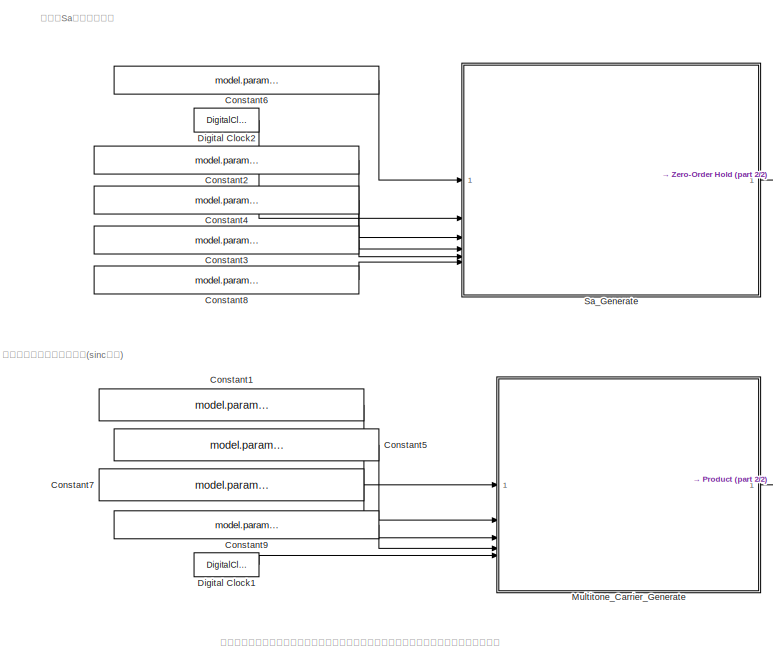
[diagram: root canvas - part 1/2, left side, full height]
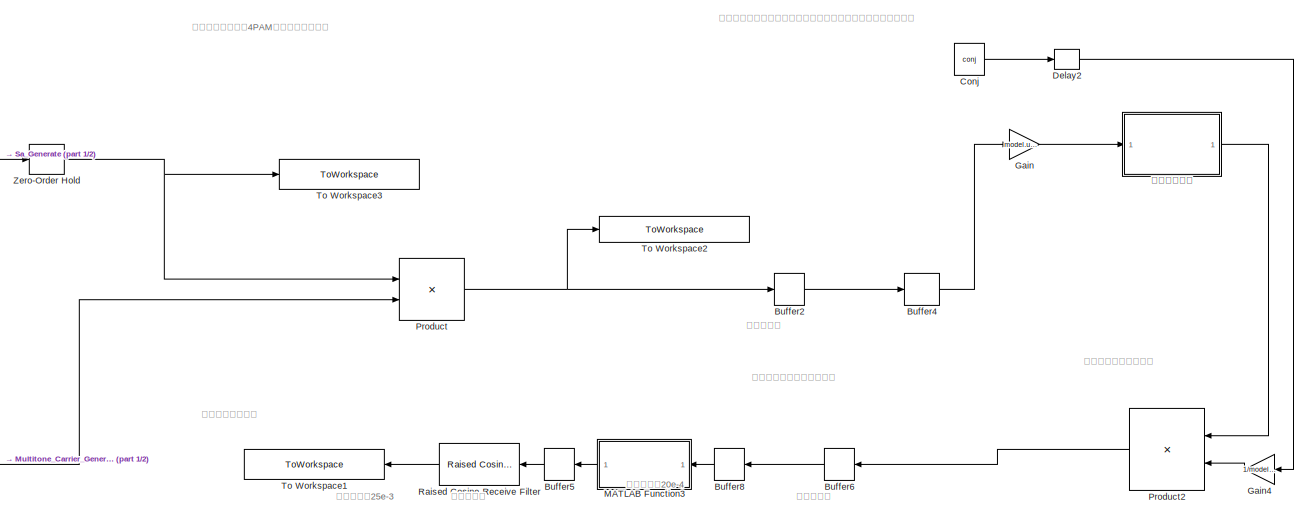
[diagram: root canvas - part 2/2, right side, full height]
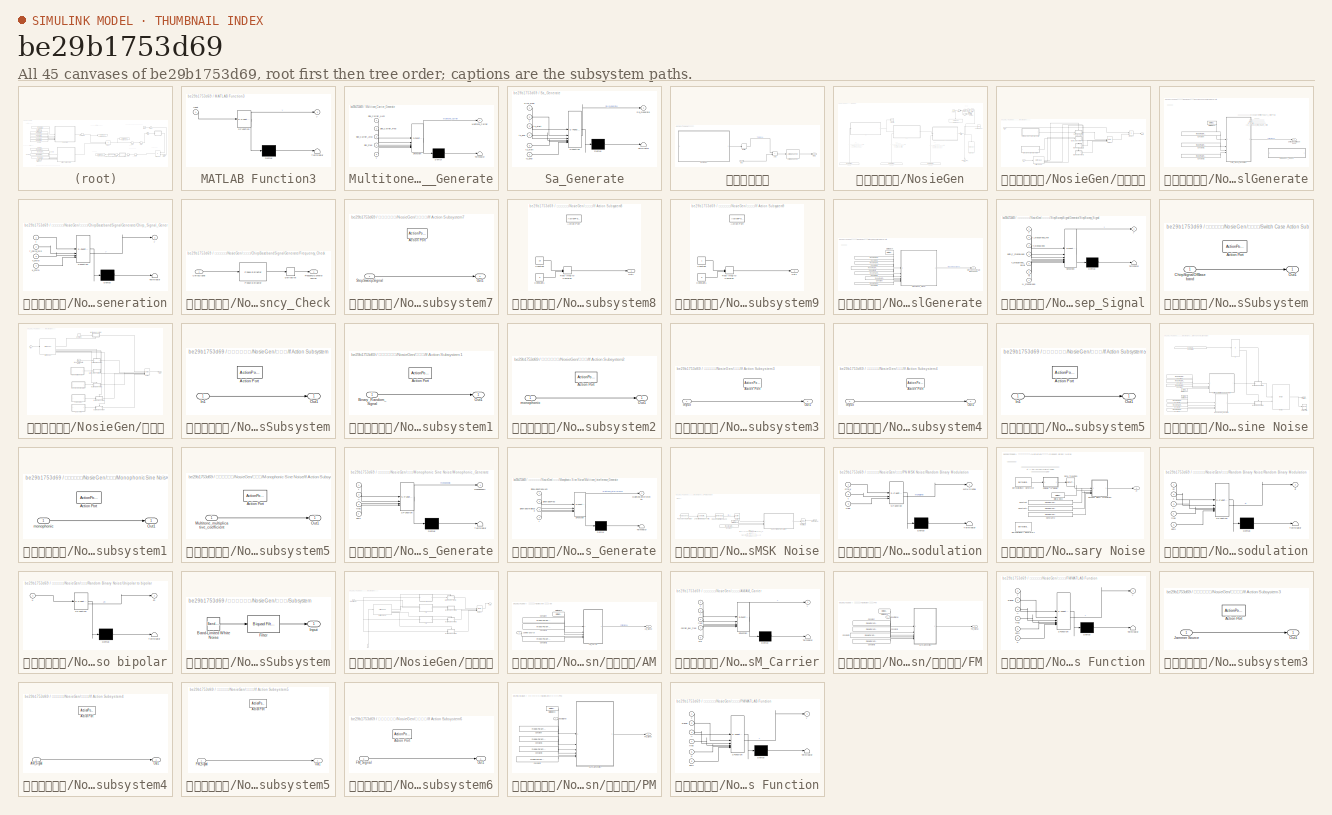
[diagram: thumbnail index - all 45 canvases of the model, root first then tree order]
MODEL slx_be29b1753d69
KIND model
CONFIG AbsTol = auto
CONFIG EnableMultiTasking = off
CONFIG FixedStep = auto
CONFIG InitFcn = Parameter_Initialize_zhentouzhenwei
CONFIG MaxStep = auto
CONFIG MinStep = auto
CONFIG RelTol = 1e-3
CONFIG SampleTimeConstraint = Unconstrained
CONFIG SolverName = VariableStepAuto
CONFIG StartTime = 0.0
CONFIG StopTime = 0.05
BLOCK [Buffer] Buffer2
  N = model.parameter.Buffer2.Output_buffer_size
  OutputFrames = off
BLOCK [Buffer] Buffer4
  N = model.parameter.Buffer4.Output_buffer_size
  OutputFrames = off
BLOCK [Buffer] Buffer5
  N = model.parameter.Buffer5.Output_buffer_size
  NameLocation = top
  OutputFrames = off
BLOCK [Buffer] Buffer6
  N = model.parameter.Buffer6.Output_buffer_size
  NameLocation = top
  OutputFrames = off
BLOCK [Buffer] Buffer8
  N = model.parameter.Buffer8.Output_buffer_size
  NameLocation = top
  OutputFrames = off
BLOCK [Math] Conj
  Operator = conj
BLOCK [Constant] Constant1
  Value = model.parameter.Sine_Carrier_Num
BLOCK [Constant] Constant2
  Value = model.parameter.t1_start
BLOCK [Constant] Constant3
  Value = model.parameter.t2_start
BLOCK [Constant] Constant4
  Value = model.parameter.t1_end
BLOCK [Constant] Constant5
  Value = model.parameter.Sine_Carrier_Freq
BLOCK [Constant] Constant6
  Value = model.parameter.Sinc_Freq
BLOCK [Constant] Constant7
  Value = model.parameter.Sine_Carrier_Ampl
BLOCK [Constant] Constant8
  Value = model.parameter.t2_end
BLOCK [Constant] Constant9
  Value = model.parameter.Sinc_Freq
BLOCK [Delay] Delay2
  DelayLength = model.parameter.delay1.delay_length
  InitialCondition = 0
  InputPortMap = u0
  InputProcessing = Columns as channels (frame based)
BLOCK [DigitalClock] Digital Clock1
  SampleTime = model.parameter.Digital_Clock2.CarrierTs
BLOCK [DigitalClock] Digital Clock2
  SampleTime = model.parameter.Digital_Clock2.CarrierTs
BLOCK [Gain] Gain
  Gain = model.user_defined.TR.Sig_power_controller_coeffience
BLOCK [Gain] Gain4
  Gain = 1/model.user_defined.TR.Sig_power_controller_coeffience
  NameLocation = top
BLOCK [SubSystem] MATLAB Function3
  ErrorFcn = Stateflow.Translate.translate
  LibrarySourceBlock = simulink/User-Defined\nFunctions/MATLAB Function
  NameLocation = top
  PermitHierarchicalResolution = ExplicitOnly
  SFBlockType = MATLAB Function
  TreatAsAtomicUnit = on
BLOCK [Demux] MATLAB Function3/ Demux 
  Outputs = 1
BLOCK [S-Function] MATLAB Function3/ SFunction 
  EnableBusSupport = on
  FunctionName = sf_sfun
  PortCounts = [1 2]
  SFcnIsStateOwnerBlock = off
  SFunctionDeploymentMode = off
  Tag = Stateflow S-Function 6
BLOCK [Terminator] MATLAB Function3/ Terminator 
BLOCK [Inport] MATLAB Function3/input
BLOCK [Outport] MATLAB Function3/y
BLOCK [SubSystem] Multitone_Carrier_Generate
  ErrorFcn = Stateflow.Translate.translate
  LibrarySourceBlock = simulink/User-Defined\nFunctions/MATLAB Function
  PermitHierarchicalResolution = ExplicitOnly
  SFBlockType = MATLAB Function
  TreatAsAtomicUnit = on
BLOCK [Demux] Multitone_Carrier_Generate/ Demux 
  Outputs = 1
BLOCK [S-Function] Multitone_Carrier_Generate/ SFunction 
  EnableBusSupport = on
  FunctionName = sf_sfun
  PortCounts = [5 2]
  SFcnIsStateOwnerBlock = off
  SFunctionDeploymentMode = off
  Tag = Stateflow S-Function 14
BLOCK [Terminator] Multitone_Carrier_Generate/ Terminator 
BLOCK [Outport] Multitone_Carrier_Generate/Multitone_Carrier
BLOCK [Inport] Multitone_Carrier_Generate/Sinc_Freq
  Port = 4
BLOCK [Inport] Multitone_Carrier_Generate/Sine_Carrier_Ampl
  Port = 3
BLOCK [Inport] Multitone_Carrier_Generate/Sine_Carrier_Freq
  Port = 2
BLOCK [Inport] Multitone_Carrier_Generate/Sine_Carrier_Num
BLOCK [Inport] Multitone_Carrier_Generate/t
  Port = 5
BLOCK [Product] Product
BLOCK [Product] Product2
  NameLocation = top
BLOCK [Reference] Raised Cosine Receive Filter  REF=commfilt2/Raised Cosine
Receive Filter
  NameLocation = top
  SourceBlock = commfilt2/Raised Cosine\nReceive Filter
  SourceType = Raised Cosine Receive Filter
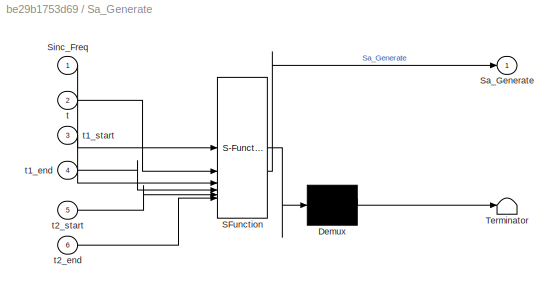
BLOCK [SubSystem] Sa_Generate
  ErrorFcn = Stateflow.Translate.translate
  LibrarySourceBlock = simulink/User-Defined\nFunctions/MATLAB Function
  PermitHierarchicalResolution = ExplicitOnly
  SFBlockType = MATLAB Function
  TreatAsAtomicUnit = on
BLOCK [Demux] Sa_Generate/ Demux 
  Outputs = 1
BLOCK [S-Function] Sa_Generate/ SFunction 
  EnableBusSupport = on
  FunctionName = sf_sfun
  PortCounts = [6 2]
  SFcnIsStateOwnerBlock = off
  SFunctionDeploymentMode = off
  Tag = Stateflow S-Function 1
BLOCK [Terminator] Sa_Generate/ Terminator 
BLOCK [Outport] Sa_Generate/Sa_Generate
BLOCK [Inport] Sa_Generate/Sinc_Freq
BLOCK [Inport] Sa_Generate/t
  Port = 2
BLOCK [Inport] Sa_Generate/t1_end
  Port = 4
BLOCK [Inport] Sa_Generate/t1_start
  Port = 3
BLOCK [Inport] Sa_Generate/t2_end
  Port = 6
BLOCK [Inport] Sa_Generate/t2_start
  Port = 5
BLOCK [ToWorkspace] To Workspace1
  FixptAsFi = on
  MaxDataPoints = inf
  NameLocation = top
  SampleTime = -1
  SaveFormat = Timeseries
  VariableName = receiving_coding
BLOCK [ToWorkspace] To Workspace2
  FixptAsFi = on
  MaxDataPoints = inf
  SampleTime = -1
  SaveFormat = Timeseries
  VariableName = sending_modulation_wave
BLOCK [ToWorkspace] To Workspace3
  FixptAsFi = on
  MaxDataPoints = inf
  SampleTime = -1
  SaveFormat = Timeseries
  VariableName = receiving_coding1
BLOCK [ZeroOrderHold] Zero-Order Hold
  SampleTime = -1
BLOCK [SubSystem] 信道模型封装
BLOCK [Reference] 信道模型封装/AWGN Channel  REF=commchan3/AWGN
Channel
  SourceBlock = commchan3/AWGN\nChannel
  SourceType = AWGN Channel
  UserDataPersistent = on
BLOCK [Sum] 信道模型封装/Add
  IconShape = rectangular
BLOCK [Buffer] 信道模型封装/Buffer
  N = model.parameter.Buffer1.Output_buffer_size
  OutputFrames = off
BLOCK [Inport] 信道模型封装/In1
BLOCK [SubSystem] 信道模型封装/NosieGen
BLOCK [Sum] 信道模型封装/NosieGen/Add1
  Commented = on
  IconShape = rectangular
  NameLocation = top
BLOCK [Buffer] 信道模型封装/NosieGen/Buffer7
  Commented = on
  N = 1
  NameLocation = top
  OutputFrames = off
BLOCK [Constant] 信道模型封装/NosieGen/Constant1
  Commented = on
  NameLocation = top
  SampleTime = model.Parameters.NoiseGen.NoiseTs
  Value = eps
BLOCK [DigitalClock] 信道模型封装/NosieGen/Digital Clock1
  Commented = on
  NameLocation = top
  SampleTime = model.Parameters.NoiseGen.NoiseTs
BLOCK [Product] 信道模型封装/NosieGen/Divide1
  Commented = on
  Inputs = */
  NameLocation = top
BLOCK [Gain] 信道模型封装/NosieGen/Gain
  Gain = model.Parameters.jammer_power_controller
BLOCK [Integrator] 信道模型封装/NosieGen/Integrator1
  Commented = on
  NameLocation = top
BLOCK [Outport] 信道模型封装/NosieGen/Jamming_Signal_Output
  NameLocation = top
BLOCK [Math] 信道模型封装/NosieGen/Power1
  Commented = on
  NameLocation = top
  Operator = magnitude^2
BLOCK [Scope] 信道模型封装/NosieGen/Scope1
  Commented = on
  Floating = off
  NameLocation = top
  NumInputPorts = 1
  ScopeSpecificationString = Simulink.scopes.TimeScopeBlockCfg('CurrentConfiguration', extmgr.ConfigurationSet(extmgr.Configuration('Core','General UI',true),extmgr.Configuration('Core','Source UI',true),extmgr.Configuration('Sources','WiredSimulink',true,'DataLoggingVariableName','ScopeData1'),extmgr.Configuration('Visuals','Time Domain',true,'SerializedDisplays',{struct('MinYLimReal','-13.45061','MaxYLimReal','121.05549','Y...<+1756ch>
BLOCK [SpectrumAnalyzer] 信道模型封装/NosieGen/Spectrum Analyzer
  Commented = on
  NameLocation = right
  ScopeSpecificationString = spbscopes.SpectrumAnalyzerBlockCfg('CurrentConfiguration', extmgr.ConfigurationSet(extmgr.Configuration('Core','General UI',true),extmgr.Configuration('Core','Source UI',true),extmgr.Configuration('Sources','WiredSimulink',true),extmgr.Configuration('Visuals','Spectrum',true,'AxesProperties',struct('Color',{[0 0 0],[0 0 0]},'XColor',{[0.686274509803922 0.686274509803922 0.686274509803922],[0.68627...<+2633ch>
BLOCK [SpectrumAnalyzer] 信道模型封装/NosieGen/Spectrum Analyzer1
  Commented = on
  NameLocation = right
  ScopeSpecificationString = spbscopes.SpectrumAnalyzerBlockCfg('CurrentConfiguration', extmgr.ConfigurationSet(extmgr.Configuration('Core','General UI',true),extmgr.Configuration('Core','Source UI',true),extmgr.Configuration('Sources','WiredSimulink',true),extmgr.Configuration('Visuals','Spectrum',true,'AxesProperties',struct('Color',{[0 0 0],[0 0 0]},'XColor',{[0.686274509803922 0.686274509803922 0.686274509803922],[0.68627...<+2494ch>
BLOCK [ToWorkspace] 信道模型封装/NosieGen/To Workspace
  Commented = on
  FixptAsFi = on
  MaxDataPoints = inf
  NameLocation = left
  SampleTime = -1
  SaveFormat = Timeseries
  VariableName = Noise
BLOCK [ToWorkspace] 信道模型封装/NosieGen/To Workspace1
  Commented = on
  FixptAsFi = on
  MaxDataPoints = inf
  NameLocation = left
  SampleTime = -1
  SaveFormat = Timeseries
  VariableName = NoisePowerEstimation1
BLOCK [SubSystem] 信道模型封装/NosieGen/干扰方式
BLOCK [SubSystem] 信道模型封装/NosieGen/干扰方式/ChirpBasebandSignalGenerate
  AttributesFormatString = 线性调频模块：线性调频公式(y=exp(2*pi*(f_min*t+0.5*k_chirp*t^2)))\n输入参数：\n1. f_min,为线性调频信号的起始频率\n2.f_max为线性调频信号的终止频率\n3.T_chirp为线性调频信号的调频时间\n斜率k_sweep = (f_min-f_max)/T_chirp
BLOCK [Outport] 信道模型封装/NosieGen/干扰方式/ChirpBasebandSignalGenerate/ChirpSignalOfBaseband
BLOCK [SubSystem] 信道模型封装/NosieGen/干扰方式/ChirpBasebandSignalGenerate/Chirp_Signal_Generation
  ErrorFcn = Stateflow.Translate.translate
  LibrarySourceBlock = simulink/User-Defined\nFunctions/MATLAB Function
  PermitHierarchicalResolution = ExplicitOnly
  SFBlockType = MATLAB Function
  TreatAsAtomicUnit = on
BLOCK [Demux] 信道模型封装/NosieGen/干扰方式/ChirpBasebandSignalGenerate/Chirp_Signal_Generation/ Demux 
  Outputs = 1
BLOCK [S-Function] 信道模型封装/NosieGen/干扰方式/ChirpBasebandSignalGenerate/Chirp_Signal_Generation/ SFunction 
  EnableBusSupport = on
  FunctionName = sf_sfun
  PortCounts = [4 2]
  SFcnIsStateOwnerBlock = off
  SFunctionDeploymentMode = off
  Tag = Stateflow S-Function 2
BLOCK [Terminator] 信道模型封装/NosieGen/干扰方式/ChirpBasebandSignalGenerate/Chirp_Signal_Generation/ Terminator 
BLOCK [Inport] 信道模型封装/NosieGen/干扰方式/ChirpBasebandSignalGenerate/Chirp_Signal_Generation/T_chirp
  Port = 3
BLOCK [Inport] 信道模型封装/NosieGen/干扰方式/ChirpBasebandSignalGenerate/Chirp_Signal_Generation/f_chirp_min
  Port = 2
BLOCK [Inport] 信道模型封装/NosieGen/干扰方式/ChirpBasebandSignalGenerate/Chirp_Signal_Generation/k_chirp
  Port = 4
BLOCK [Inport] 信道模型封装/NosieGen/干扰方式/ChirpBasebandSignalGenerate/Chirp_Signal_Generation/t
BLOCK [Outport] 信道模型封装/NosieGen/干扰方式/ChirpBasebandSignalGenerate/Chirp_Signal_Generation/y
BLOCK [Constant] 信道模型封装/NosieGen/干扰方式/ChirpBasebandSignalGenerate/Constant
  Value = model.Parameters.NoiseGen.Jamming.LinearSweepFmin
BLOCK [Constant] 信道模型封装/NosieGen/干扰方式/ChirpBasebandSignalGenerate/Constant1
  Value = model.Parameters.NoiseGen.Jamming.LinearSweepT
BLOCK [Constant] 信道模型封装/NosieGen/干扰方式/ChirpBasebandSignalGenerate/Constant2
  Value = model.Parameters.NoiseGen.Jamming.LinearSweepK
BLOCK [DigitalClock] 信道模型封装/NosieGen/干扰方式/ChirpBasebandSignalGenerate/Digital Clock
  SampleTime = model.Parameters.NoiseGen.NoiseTs
BLOCK [SubSystem] 信道模型封装/NosieGen/干扰方式/ChirpBasebandSignalGenerate/Frequency_Check
  Commented = on
BLOCK [Inport] 信道模型封装/NosieGen/干扰方式/ChirpBasebandSignalGenerate/Frequency_Check/ChirpSignal
BLOCK [Derivative] 信道模型封装/NosieGen/干扰方式/ChirpBasebandSignalGenerate/Frequency_Check/Derivative
BLOCK [Outport] 信道模型封装/NosieGen/干扰方式/ChirpBasebandSignalGenerate/Frequency_Check/FrequencyConversionLine
BLOCK [Reference] 信道模型封装/NosieGen/干扰方式/ChirpBasebandSignalGenerate/Frequency_Check/Phase Extractor  REF=dspsigops/Phase Extractor
  SourceBlock = dspsigops/Phase Extractor
  SourceType = dsp.simulink.PhaseExtractor
BLOCK [SubSystem] 信道模型封装/NosieGen/干扰方式/If Action Subsystem7
  TreatAsAtomicUnit = on
BLOCK [ActionPort] 信道模型封装/NosieGen/干扰方式/If Action Subsystem7/Action Port
  ActionPortLabel = case [ 2 ]:
BLOCK [Outport] 信道模型封装/NosieGen/干扰方式/If Action Subsystem7/Out1
BLOCK [Inport] 信道模型封装/NosieGen/干扰方式/If Action Subsystem7/StepSweepSignal
BLOCK [SubSystem] 信道模型封装/NosieGen/干扰方式/If Action Subsystem8
  TreatAsAtomicUnit = on
BLOCK [ActionPort] 信道模型封装/NosieGen/干扰方式/If Action Subsystem8/Action Port
  ActionPortLabel = case [ 3 ]:
BLOCK [Constant] 信道模型封装/NosieGen/干扰方式/If Action Subsystem8/Constant
  Value = 10
BLOCK [Constant] 信道模型封装/NosieGen/干扰方式/If Action Subsystem8/Constant1
  Value = 0
BLOCK [Outport] 信道模型封装/NosieGen/干扰方式/If Action Subsystem8/Out1
BLOCK [RealImagToComplex] 信道模型封装/NosieGen/干扰方式/If Action Subsystem8/Real-Imag to Complex
BLOCK [SubSystem] 信道模型封装/NosieGen/干扰方式/If Action Subsystem9
  TreatAsAtomicUnit = on
BLOCK [ActionPort] 信道模型封装/NosieGen/干扰方式/If Action Subsystem9/Action Port
  ActionPortLabel = default:
BLOCK [Constant] 信道模型封装/NosieGen/干扰方式/If Action Subsystem9/Constant
BLOCK [Constant] 信道模型封装/NosieGen/干扰方式/If Action Subsystem9/Constant1
  Value = 0
BLOCK [Outport] 信道模型封装/NosieGen/干扰方式/If Action Subsystem9/Out1
BLOCK [RealImagToComplex] 信道模型封装/NosieGen/干扰方式/If Action Subsystem9/Real-Imag to Complex
BLOCK [Inport] 信道模型封装/NosieGen/干扰方式/In1
BLOCK [Inport] 信道模型封装/NosieGen/干扰方式/In2
  Port = 2
BLOCK [Merge] 信道模型封装/NosieGen/干扰方式/Merge2
  Inputs = 4
BLOCK [Outport] 信道模型封装/NosieGen/干扰方式/Out1
BLOCK [Product] 信道模型封装/NosieGen/干扰方式/Product
BLOCK [SubSystem] 信道模型封装/NosieGen/干扰方式/StepSweepSignalGenerate
BLOCK [Constant] 信道模型封装/NosieGen/干扰方式/StepSweepSignalGenerate/Constant
  Value = model.Parameters.NoiseGen.NoiseTs
BLOCK [Constant] 信道模型封装/NosieGen/干扰方式/StepSweepSignalGenerate/Constant1
  Value = model.Parameters.NoiseGen.Jamming.StepSweepFmin
BLOCK [Constant] 信道模型封装/NosieGen/干扰方式/StepSweepSignalGenerate/Constant2
  Value = model.Parameters.NoiseGen.Jamming.StepSweepT
BLOCK [Constant] 信道模型封装/NosieGen/干扰方式/StepSweepSignalGenerate/Constant3
  Value = model.Parameters.NoiseGen.Jamming.StepSweepDeltaFstep
BLOCK [Constant] 信道模型封装/NosieGen/干扰方式/StepSweepSignalGenerate/Constant4
  Value = model.Parameters.NoiseGen.Jamming.StepSweepTDwell
BLOCK [Constant] 信道模型封装/NosieGen/干扰方式/StepSweepSignalGenerate/Constant5
  Value = model.Parameters.NoiseGen.Jamming.StepSweepN
BLOCK [DigitalClock] 信道模型封装/NosieGen/干扰方式/StepSweepSignalGenerate/Digital Clock
  SampleTime = model.Parameters.NoiseGen.NoiseTs
BLOCK [Outport] 信道模型封装/NosieGen/干扰方式/StepSweepSignalGenerate/StepSweepSignalOfBaseband
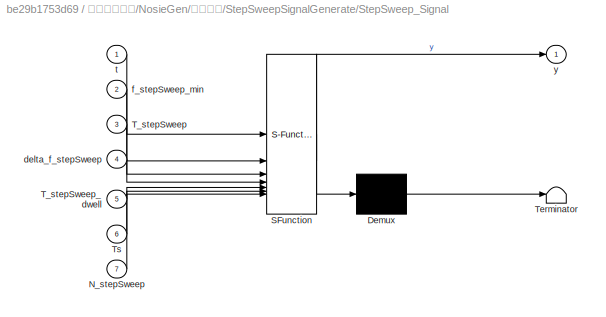
BLOCK [SubSystem] 信道模型封装/NosieGen/干扰方式/StepSweepSignalGenerate/StepSweep_Signal
  ErrorFcn = Stateflow.Translate.translate
  LibrarySourceBlock = simulink/User-Defined\nFunctions/MATLAB Function
  PermitHierarchicalResolution = ExplicitOnly
  SFBlockType = MATLAB Function
  TreatAsAtomicUnit = on
BLOCK [Demux] 信道模型封装/NosieGen/干扰方式/StepSweepSignalGenerate/StepSweep_Signal/ Demux 
  Outputs = 1
BLOCK [S-Function] 信道模型封装/NosieGen/干扰方式/StepSweepSignalGenerate/StepSweep_Signal/ SFunction 
  EnableBusSupport = on
  FunctionName = sf_sfun
  PortCounts = [7 2]
  SFcnIsStateOwnerBlock = off
  SFunctionDeploymentMode = off
  Tag = Stateflow S-Function 8
BLOCK [Terminator] 信道模型封装/NosieGen/干扰方式/StepSweepSignalGenerate/StepSweep_Signal/ Terminator 
BLOCK [Inport] 信道模型封装/NosieGen/干扰方式/StepSweepSignalGenerate/StepSweep_Signal/N_stepSweep
  Port = 7
BLOCK [Inport] 信道模型封装/NosieGen/干扰方式/StepSweepSignalGenerate/StepSweep_Signal/T_stepSweep
  Port = 3
BLOCK [Inport] 信道模型封装/NosieGen/干扰方式/StepSweepSignalGenerate/StepSweep_Signal/T_stepSweep_dwell
  Port = 5
BLOCK [Inport] 信道模型封装/NosieGen/干扰方式/StepSweepSignalGenerate/StepSweep_Signal/Ts
  Port = 6
BLOCK [Inport] 信道模型封装/NosieGen/干扰方式/StepSweepSignalGenerate/StepSweep_Signal/delta_f_stepSweep
  Port = 4
BLOCK [Inport] 信道模型封装/NosieGen/干扰方式/StepSweepSignalGenerate/StepSweep_Signal/f_stepSweep_min
  Port = 2
BLOCK [Inport] 信道模型封装/NosieGen/干扰方式/StepSweepSignalGenerate/StepSweep_Signal/t
BLOCK [Outport] 信道模型封装/NosieGen/干扰方式/StepSweepSignalGenerate/StepSweep_Signal/y
BLOCK [SubSystem] 信道模型封装/NosieGen/干扰方式/Switch Case Action Subsystem
  TreatAsAtomicUnit = on
BLOCK [ActionPort] 信道模型封装/NosieGen/干扰方式/Switch Case Action Subsystem/Action Port
  ActionPortLabel = case [ 1 ]:
BLOCK [Inport] 信道模型封装/NosieGen/干扰方式/Switch Case Action Subsystem/ChirpSignalOfBaseband
BLOCK [Outport] 信道模型封装/NosieGen/干扰方式/Switch Case Action Subsystem/Out1
BLOCK [SwitchCase] 信道模型封装/NosieGen/干扰方式/Switch Case2
  CaseConditions = {1,2,3}
BLOCK [Constant] 信道模型封装/NosieGen/干扰方式控制位
  NameLocation = right
  SampleTime = Inf
  Value = model.Parameters.NoiseGen.Control.Jamming
BLOCK [SubSystem] 信道模型封装/NosieGen/干扰源
BLOCK [Reference] 信道模型封装/NosieGen/干扰源/Band-Limited White Noise  REF=simulink/Sources/Band-Limited
White Noise
  SourceBlock = simulink/Sources/Band-Limited\nWhite Noise
  SourceType = Band-Limited White Noise.
BLOCK [Constant] 信道模型封装/NosieGen/干扰源/Constant
  SampleTime = model.Parameters.NoiseGen.NoiseTs
  Value = 0
BLOCK [SubSystem] 信道模型封装/NosieGen/干扰源/If Action Subsystem
  TreatAsAtomicUnit = on
BLOCK [ActionPort] 信道模型封装/NosieGen/干扰源/If Action Subsystem/Action Port
  ActionPortLabel = case [ 1 ]:
BLOCK [Inport] 信道模型封装/NosieGen/干扰源/If Action Subsystem/In1
BLOCK [Outport] 信道模型封装/NosieGen/干扰源/If Action Subsystem/Out1
BLOCK [SubSystem] 信道模型封装/NosieGen/干扰源/If Action Subsystem1
  TreatAsAtomicUnit = on
BLOCK [ActionPort] 信道模型封装/NosieGen/干扰源/If Action Subsystem1/Action Port
  ActionPortLabel = case [ 2 ]:
BLOCK [Inport] 信道模型封装/NosieGen/干扰源/If Action Subsystem1/Binary_Random_Signal
BLOCK [Outport] 信道模型封装/NosieGen/干扰源/If Action Subsystem1/Out1
BLOCK [SubSystem] 信道模型封装/NosieGen/干扰源/If Action Subsystem2
  TreatAsAtomicUnit = on
BLOCK [ActionPort] 信道模型封装/NosieGen/干扰源/If Action Subsystem2/Action Port
  ActionPortLabel = case [ 3 ]:
BLOCK [Outport] 信道模型封装/NosieGen/干扰源/If Action Subsystem2/Out1
BLOCK [Inport] 信道模型封装/NosieGen/干扰源/If Action Subsystem2/monophonic
BLOCK [SubSystem] 信道模型封装/NosieGen/干扰源/If Action Subsystem3
  TreatAsAtomicUnit = on
BLOCK [ActionPort] 信道模型封装/NosieGen/干扰源/If Action Subsystem3/Action Port
  ActionPortLabel = case [ 4 ]:
BLOCK [Inport] 信道模型封装/NosieGen/干扰源/If Action Subsystem3/Input
BLOCK [Outport] 信道模型封装/NosieGen/干扰源/If Action Subsystem3/Out1
BLOCK [SubSystem] 信道模型封装/NosieGen/干扰源/If Action Subsystem4
  TreatAsAtomicUnit = on
BLOCK [ActionPort] 信道模型封装/NosieGen/干扰源/If Action Subsystem4/Action Port
  ActionPortLabel = case [ 5 ]:
BLOCK [Inport] 信道模型封装/NosieGen/干扰源/If Action Subsystem4/Input
BLOCK [Outport] 信道模型封装/NosieGen/干扰源/If Action Subsystem4/Out1
BLOCK [SubSystem] 信道模型封装/NosieGen/干扰源/If Action Subsystem5
  TreatAsAtomicUnit = on
BLOCK [ActionPort] 信道模型封装/NosieGen/干扰源/If Action Subsystem5/Action Port
  ActionPortLabel = case [ 0 ]:
BLOCK [Inport] 信道模型封装/NosieGen/干扰源/If Action Subsystem5/In1
BLOCK [Outport] 信道模型封装/NosieGen/干扰源/If Action Subsystem5/Out1
BLOCK [Inport] 信道模型封装/NosieGen/干扰源/In1
BLOCK [Merge] 信道模型封装/NosieGen/干扰源/Merge
  Inputs = 6
BLOCK [SubSystem] 信道模型封装/NosieGen/干扰源/Monophonic Sine Noise
BLOCK [Constant] 信道模型封装/NosieGen/干扰源/Monophonic Sine Noise/Constant
  Value = model.Parameters.NoiseGen.SineNoisePhi0
BLOCK [Constant] 信道模型封装/NosieGen/干扰源/Monophonic Sine Noise/Constant1
  Value = model.Parameters.NoiseGen.SineNoiseF
BLOCK [Constant] 信道模型封装/NosieGen/干扰源/Monophonic Sine Noise/Constant2
  Value = model.Parameters.NoiseGen.SineNoiseA
BLOCK [Constant] 信道模型封装/NosieGen/干扰源/Monophonic Sine Noise/Constant3
  Value = model.Parameters.NoiseGen.SineNoiseFreqNum
BLOCK [Constant] 信道模型封装/NosieGen/干扰源/Monophonic Sine Noise/Constant4
  Value = model.Parameters.NoiseGen.SineNoiseOtherFreq
BLOCK [Constant] 信道模型封装/NosieGen/干扰源/Monophonic Sine Noise/Constant5
  Value = model.Parameters.NoiseGen.SineNoiseOtherAmplitude
BLOCK [Constant] 信道模型封装/NosieGen/干扰源/Monophonic Sine Noise/Constant6
  Value = model.Parameters.NoiseGen.SineNoiseMulti_selection
BLOCK [DigitalClock] 信道模型封装/NosieGen/干扰源/Monophonic Sine Noise/Digital Clock
  SampleTime = model.Parameters.NoiseGen.NoiseTs
BLOCK [DigitalClock] 信道模型封装/NosieGen/干扰源/Monophonic Sine Noise/Digital Clock1
  SampleTime = model.Parameters.NoiseGen.NoiseTs
BLOCK [If] 信道模型封装/NosieGen/干扰源/Monophonic Sine Noise/If
  IfExpression = u1 == 1
BLOCK [SubSystem] 信道模型封装/NosieGen/干扰源/Monophonic Sine Noise/If Action Subsystem1
  TreatAsAtomicUnit = on
BLOCK [ActionPort] 信道模型封装/NosieGen/干扰源/Monophonic Sine Noise/If Action Subsystem1/Action Port
  ActionPortLabel = else
BLOCK [Outport] 信道模型封装/NosieGen/干扰源/Monophonic Sine Noise/If Action Subsystem1/Out1
BLOCK [Inport] 信道模型封装/NosieGen/干扰源/Monophonic Sine Noise/If Action Subsystem1/monophonic
BLOCK [SubSystem] 信道模型封装/NosieGen/干扰源/Monophonic Sine Noise/If Action Subsystem5
  TreatAsAtomicUnit = on
BLOCK [ActionPort] 信道模型封装/NosieGen/干扰源/Monophonic Sine Noise/If Action Subsystem5/Action Port
  ActionPortLabel = if(u1 == 1)
BLOCK [Inport] 信道模型封装/NosieGen/干扰源/Monophonic Sine Noise/If Action Subsystem5/Multitone_multiplicative_coefficient
BLOCK [Outport] 信道模型封装/NosieGen/干扰源/Monophonic Sine Noise/If Action Subsystem5/Out1
BLOCK [Merge] 信道模型封装/NosieGen/干扰源/Monophonic Sine Noise/Merge
BLOCK [SubSystem] 信道模型封装/NosieGen/干扰源/Monophonic Sine Noise/Monophonic_Generate
  ErrorFcn = Stateflow.Translate.translate
  LibrarySourceBlock = simulink/User-Defined\nFunctions/MATLAB Function
  PermitHierarchicalResolution = ExplicitOnly
  SFBlockType = MATLAB Function
  TreatAsAtomicUnit = on
BLOCK [Demux] 信道模型封装/NosieGen/干扰源/Monophonic Sine Noise/Monophonic_Generate/ Demux 
  Outputs = 1
BLOCK [S-Function] 信道模型封装/NosieGen/干扰源/Monophonic Sine Noise/Monophonic_Generate/ SFunction 
  EnableBusSupport = on
  FunctionName = sf_sfun
  PortCounts = [4 2]
  SFcnIsStateOwnerBlock = off
  SFunctionDeploymentMode = off
  Tag = Stateflow S-Function 3
BLOCK [Terminator] 信道模型封装/NosieGen/干扰源/Monophonic Sine Noise/Monophonic_Generate/ Terminator 
BLOCK [Inport] 信道模型封装/NosieGen/干扰源/Monophonic Sine Noise/Monophonic_Generate/A
  Port = 2
BLOCK [Inport] 信道模型封装/NosieGen/干扰源/Monophonic Sine Noise/Monophonic_Generate/freq
  Port = 3
BLOCK [Outport] 信道模型封装/NosieGen/干扰源/Monophonic Sine Noise/Monophonic_Generate/monophonic
BLOCK [Inport] 信道模型封装/NosieGen/干扰源/Monophonic Sine Noise/Monophonic_Generate/phi0
  Port = 4
BLOCK [Inport] 信道模型封装/NosieGen/干扰源/Monophonic Sine Noise/Monophonic_Generate/t
BLOCK [SubSystem] 信道模型封装/NosieGen/干扰源/Monophonic Sine Noise/Multitone_Interference_Generate
  ErrorFcn = Stateflow.Translate.translate
  LibrarySourceBlock = simulink/User-Defined\nFunctions/MATLAB Function
  PermitHierarchicalResolution = ExplicitOnly
  SFBlockType = MATLAB Function
  TreatAsAtomicUnit = on
BLOCK [Demux] 信道模型封装/NosieGen/干扰源/Monophonic Sine Noise/Multitone_Interference_Generate/ Demux 
  Outputs = 1
BLOCK [S-Function] 信道模型封装/NosieGen/干扰源/Monophonic Sine Noise/Multitone_Interference_Generate/ SFunction 
  EnableBusSupport = on
  FunctionName = sf_sfun
  PortCounts = [4 2]
  SFcnIsStateOwnerBlock = off
  SFunctionDeploymentMode = off
  Tag = Stateflow S-Function 11
BLOCK [Terminator] 信道模型封装/NosieGen/干扰源/Monophonic Sine Noise/Multitone_Interference_Generate/ Terminator 
BLOCK [Outport] 信道模型封装/NosieGen/干扰源/Monophonic Sine Noise/Multitone_Interference_Generate/Multitone_interference
BLOCK [Inport] 信道模型封装/NosieGen/干扰源/Monophonic Sine Noise/Multitone_Interference_Generate/SineNoiseAmplitude
  Port = 3
BLOCK [Inport] 信道模型封装/NosieGen/干扰源/Monophonic Sine Noise/Multitone_Interference_Generate/SineNoiseFreq
  Port = 2
BLOCK [Inport] 信道模型封装/NosieGen/干扰源/Monophonic Sine Noise/Multitone_Interference_Generate/SineNoiseFreqNum
BLOCK [Inport] 信道模型封装/NosieGen/干扰源/Monophonic Sine Noise/Multitone_Interference_Generate/t
  Port = 4
BLOCK [SpectrumAnalyzer] 信道模型封装/NosieGen/干扰源/Monophonic Sine Noise/Spectrum Analyzer1
  Commented = on
  NameLocation = right
  ScopeSpecificationString = spbscopes.SpectrumAnalyzerBlockCfg('CurrentConfiguration', extmgr.ConfigurationSet(extmgr.Configuration('Core','General UI',true),extmgr.Configuration('Core','Source UI',true),extmgr.Configuration('Sources','WiredSimulink',true),extmgr.Configuration('Visuals','Spectrum',true,'AxesProperties',struct('Color',{[0 0 0],[0 0 0]},'XColor',{[0.686274509803922 0.686274509803922 0.686274509803922],[0.68627...<+2835ch>
BLOCK [Outport] 信道模型封装/NosieGen/干扰源/Monophonic Sine Noise/multitone
BLOCK [Outport] 信道模型封装/NosieGen/干扰源/Out1
BLOCK [SubSystem] 信道模型封装/NosieGen/干扰源/PN MSK Noise
BLOCK [Buffer] 信道模型封装/NosieGen/干扰源/PN MSK Noise/Buffer
  N = 1
  OutputFrames = off
BLOCK [ComplexToRealImag] 信道模型封装/NosieGen/干扰源/PN MSK Noise/Complex to Real-Imag
BLOCK [Constant] 信道模型封装/NosieGen/干扰源/PN MSK Noise/Constant
  Value = model.Parameters.NoiseGen.PNMSKF
BLOCK [DigitalClock] 信道模型封装/NosieGen/干扰源/PN MSK Noise/Digital Clock
  SampleTime = model.Parameters.NoiseGen.NoiseTs
BLOCK [Reference] 信道模型封装/NosieGen/干扰源/PN MSK Noise/MSK Modulator Baseband  REF=commdigbbndcpm2/MSK
Modulator
Baseband
  SourceBlock = commdigbbndcpm2/MSK\nModulator\nBaseband
  SourceType = MSK Modulator Baseband
  UserDataPersistent = on
BLOCK [Outport] 信道模型封装/NosieGen/干扰源/PN MSK Noise/MSKSignal
  OutDataTypeStr = double
BLOCK [Reference] 信道模型封装/NosieGen/干扰源/PN MSK Noise/PN Sequence Generator  REF=commseqgen3/PN Sequence
Generator
  LibrarySourceBlock = commhdlsource/PN Sequence\nGenerator
  SourceBlock = commseqgen3/PN Sequence\nGenerator
  SourceType = PN Sequence Generator
BLOCK [SubSystem] 信道模型封装/NosieGen/干扰源/PN MSK Noise/Random Binary Modulation
  ErrorFcn = Stateflow.Translate.translate
  LibrarySourceBlock = simulink/User-Defined\nFunctions/MATLAB Function
  PermitHierarchicalResolution = ExplicitOnly
  SFBlockType = MATLAB Function
  TreatAsAtomicUnit = on
BLOCK [Demux] 信道模型封装/NosieGen/干扰源/PN MSK Noise/Random Binary Modulation/ Demux 
  Outputs = 1
BLOCK [S-Function] 信道模型封装/NosieGen/干扰源/PN MSK Noise/Random Binary Modulation/ SFunction 
  EnableBusSupport = on
  FunctionName = sf_sfun
  PortCounts = [3 2]
  SFcnIsStateOwnerBlock = off
  SFunctionDeploymentMode = off
  Tag = Stateflow S-Function 9
BLOCK [Terminator] 信道模型封装/NosieGen/干扰源/PN MSK Noise/Random Binary Modulation/ Terminator 
BLOCK [Outport] 信道模型封装/NosieGen/干扰源/PN MSK Noise/Random Binary Modulation/MSKSignal
BLOCK [Inport] 信道模型封装/NosieGen/干扰源/PN MSK Noise/Random Binary Modulation/cita_k
BLOCK [Inport] 信道模型封装/NosieGen/干扰源/PN MSK Noise/Random Binary Modulation/freq
  Port = 3
BLOCK [Inport] 信道模型封装/NosieGen/干扰源/PN MSK Noise/Random Binary Modulation/t
  Port = 2
BLOCK [Reference] 信道模型封装/NosieGen/干扰源/PN MSK Noise/Unipolar to Bipolar Converter1  REF=commutil2/Unipolar to
Bipolar
Converter
  SourceBlock = commutil2/Unipolar to\nBipolar\nConverter
  SourceType = Unipolar to Bipolar Converter
BLOCK [SubSystem] 信道模型封装/NosieGen/干扰源/Random Binary Noise
BLOCK [Reference] 信道模型封装/NosieGen/干扰源/Random Binary Noise/Bernoulli Binary Generator  REF=commrandsrc3/Bernoulli Binary
Generator
  SourceBlock = commrandsrc3/Bernoulli Binary\nGenerator
  SourceType = Bernoulli Binary Generator
BLOCK [Reference] 信道模型封装/NosieGen/干扰源/Random Binary Noise/Bernoulli Binary Generator1  REF=commrandsrc3/Bernoulli Binary
Generator
  Commented = on
  SourceBlock = commrandsrc3/Bernoulli Binary\nGenerator
  SourceType = Bernoulli Binary Generator
BLOCK [Constant] 信道模型封装/NosieGen/干扰源/Random Binary Noise/Constant
  Value = model.Parameters.NoiseGen.RandBPFA
BLOCK [Constant] 信道模型封装/NosieGen/干扰源/Random Binary Noise/Constant1
  Value = model.Parameters.NoiseGen.RandBPFF
BLOCK [Constant] 信道模型封装/NosieGen/干扰源/Random Binary Noise/Constant2
  Value = model.Parameters.NoiseGen.RandBPFPhi0
BLOCK [DigitalClock] 信道模型封装/NosieGen/干扰源/Random Binary Noise/Digital Clock
  SampleTime = model.Parameters.NoiseGen.NoiseTs
BLOCK [Outport] 信道模型封装/NosieGen/干扰源/Random Binary Noise/Jt
BLOCK [SubSystem] 信道模型封装/NosieGen/干扰源/Random Binary Noise/Random Binary Modulation
  ErrorFcn = Stateflow.Translate.translate
  LibrarySourceBlock = simulink/User-Defined\nFunctions/MATLAB Function
  PermitHierarchicalResolution = ExplicitOnly
  SFBlockType = MATLAB Function
  TreatAsAtomicUnit = on
BLOCK [Demux] 信道模型封装/NosieGen/干扰源/Random Binary Noise/Random Binary Modulation/ Demux 
  Outputs = 1
BLOCK [S-Function] 信道模型封装/NosieGen/干扰源/Random Binary Noise/Random Binary Modulation/ SFunction 
  EnableBusSupport = on
  FunctionName = sf_sfun
  PortCounts = [5 2]
  SFcnIsStateOwnerBlock = off
  SFunctionDeploymentMode = off
  Tag = Stateflow S-Function 4
BLOCK [Terminator] 信道模型封装/NosieGen/干扰源/Random Binary Noise/Random Binary Modulation/ Terminator 
BLOCK [Inport] 信道模型封装/NosieGen/干扰源/Random Binary Noise/Random Binary Modulation/A
  Port = 3
BLOCK [Inport] 信道模型封装/NosieGen/干扰源/Random Binary Noise/Random Binary Modulation/Jn
BLOCK [Outport] 信道模型封装/NosieGen/干扰源/Random Binary Noise/Random Binary Modulation/Jt
BLOCK [Inport] 信道模型封装/NosieGen/干扰源/Random Binary Noise/Random Binary Modulation/freq
  Port = 4
BLOCK [Inport] 信道模型封装/NosieGen/干扰源/Random Binary Noise/Random Binary Modulation/phi0
  Port = 5
BLOCK [Inport] 信道模型封装/NosieGen/干扰源/Random Binary Noise/Random Binary Modulation/t
  Port = 2
BLOCK [RateTransition] 信道模型封装/NosieGen/干扰源/Random Binary Noise/Rate Transition
BLOCK [SubSystem] 信道模型封装/NosieGen/干扰源/Random Binary Noise/Unipolar to bipolar
  ErrorFcn = Stateflow.Translate.translate
  LibrarySourceBlock = simulink/User-Defined\nFunctions/MATLAB Function
  PermitHierarchicalResolution = ExplicitOnly
  SFBlockType = MATLAB Function
  TreatAsAtomicUnit = on
BLOCK [Demux] 信道模型封装/NosieGen/干扰源/Random Binary Noise/Unipolar to bipolar/ Demux 
  Outputs = 1
BLOCK [S-Function] 信道模型封装/NosieGen/干扰源/Random Binary Noise/Unipolar to bipolar/ SFunction 
  EnableBusSupport = on
  FunctionName = sf_sfun
  PortCounts = [1 2]
  SFcnIsStateOwnerBlock = off
  SFunctionDeploymentMode = off
  Tag = Stateflow S-Function 7
BLOCK [Terminator] 信道模型封装/NosieGen/干扰源/Random Binary Noise/Unipolar to bipolar/ Terminator 
BLOCK [Outport] 信道模型封装/NosieGen/干扰源/Random Binary Noise/Unipolar to bipolar/Jn
BLOCK [Inport] 信道模型封装/NosieGen/干扰源/Random Binary Noise/Unipolar to bipolar/u
BLOCK [SubSystem] 信道模型封装/NosieGen/干扰源/Subsystem
BLOCK [Reference] 信道模型封装/NosieGen/干扰源/Subsystem/Band-Limited White Noise  REF=simulink/Sources/Band-Limited
White Noise
  SourceBlock = simulink/Sources/Band-Limited\nWhite Noise
  SourceType = Band-Limited White Noise.
BLOCK [Reference] 信道模型封装/NosieGen/干扰源/Subsystem/Filter  REF=dsparch4/Biquad Filter
  SourceBlock = dsparch4/Biquad Filter
  SourceType = Biquad Filter
  Tag = BlockMethodSubSystem
  UserDataPersistent = on
BLOCK [Outport] 信道模型封装/NosieGen/干扰源/Subsystem/Input
BLOCK [SwitchCase] 信道模型封装/NosieGen/干扰源/Switch Case
  CaseConditions = {0,1,2,3,4,5}
BLOCK [Constant] 信道模型封装/NosieGen/干扰源控制位
  SampleTime = Inf
  Value = model.Parameters.NoiseGen.Control.Source
BLOCK [SubSystem] 信道模型封装/NosieGen/调制方式
BLOCK [SubSystem] 信道模型封装/NosieGen/调制方式/AM
BLOCK [SubSystem] 信道模型封装/NosieGen/调制方式/AM/AM_Carrier
  ErrorFcn = Stateflow.Translate.translate
  LibrarySourceBlock = simulink/User-Defined\nFunctions/MATLAB Function
  PermitHierarchicalResolution = ExplicitOnly
  SFBlockType = MATLAB Function
  TreatAsAtomicUnit = on
BLOCK [Demux] 信道模型封装/NosieGen/调制方式/AM/AM_Carrier/ Demux 
  Outputs = 1
BLOCK [S-Function] 信道模型封装/NosieGen/调制方式/AM/AM_Carrier/ SFunction 
  EnableBusSupport = on
  FunctionName = sf_sfun
  PortCounts = [5 2]
  SFcnIsStateOwnerBlock = off
  SFunctionDeploymentMode = off
  Tag = Stateflow S-Function 10
BLOCK [Terminator] 信道模型封装/NosieGen/调制方式/AM/AM_Carrier/ Terminator 
BLOCK [Inport] 信道模型封装/NosieGen/调制方式/AM/AM_Carrier/A
  Port = 2
BLOCK [Inport] 信道模型封装/NosieGen/调制方式/AM/AM_Carrier/Ma
  Port = 5
BLOCK [Inport] 信道模型封装/NosieGen/调制方式/AM/AM_Carrier/carrier_low_freq
  Port = 4
BLOCK [Inport] 信道模型封装/NosieGen/调制方式/AM/AM_Carrier/freq
  Port = 3
BLOCK [Inport] 信道模型封装/NosieGen/调制方式/AM/AM_Carrier/t
BLOCK [Outport] 信道模型封装/NosieGen/调制方式/AM/AM_Carrier/y
BLOCK [Outport] 信道模型封装/NosieGen/调制方式/AM/AM_Signal
BLOCK [Constant] 信道模型封装/NosieGen/调制方式/AM/Constant
  Value = model.Parameters.NoiseGen.Modulator.AMA
BLOCK [Constant] 信道模型封装/NosieGen/调制方式/AM/Constant1
  Value = model.Parameters.NoiseGen.Modulator.AMF
BLOCK [Constant] 信道模型封装/NosieGen/调制方式/AM/Constant2
  Value = model.Parameters.NoiseGen.Modulator.Ma
BLOCK [DigitalClock] 信道模型封装/NosieGen/调制方式/AM/Digital Clock
  SampleTime = model.Parameters.NoiseGen.NoiseTs
BLOCK [Inport] 信道模型封装/NosieGen/调制方式/AM/Jammer Source
BLOCK [SubSystem] 信道模型封装/NosieGen/调制方式/FM
BLOCK [Constant] 信道模型封装/NosieGen/调制方式/FM/Constant
  Value = model.Parameters.NoiseGen.Modulator.FMA
BLOCK [Constant] 信道模型封装/NosieGen/调制方式/FM/Constant1
  Value = model.Parameters.NoiseGen.Modulator.FMF
BLOCK [Constant] 信道模型封装/NosieGen/调制方式/FM/Constant2
  Value = model.Parameters.NoiseGen.Modulator.FMPhi0
BLOCK [Constant] 信道模型封装/NosieGen/调制方式/FM/Constant3
  Value = model.Parameters.NoiseGen.Modulator.FMK
BLOCK [DigitalClock] 信道模型封装/NosieGen/调制方式/FM/Digital Clock
  SampleTime = model.Parameters.NoiseGen.NoiseTs
BLOCK [Outport] 信道模型封装/NosieGen/调制方式/FM/FM_Signal
BLOCK [Inport] 信道模型封装/NosieGen/调制方式/FM/InputSignal
BLOCK [SubSystem] 信道模型封装/NosieGen/调制方式/FM/MATLAB Function
  ErrorFcn = Stateflow.Translate.translate
  LibrarySourceBlock = simulink/User-Defined\nFunctions/MATLAB Function
  PermitHierarchicalResolution = ExplicitOnly
  SFBlockType = MATLAB Function
  TreatAsAtomicUnit = on
BLOCK [Demux] 信道模型封装/NosieGen/调制方式/FM/MATLAB Function/ Demux 
  Outputs = 1
BLOCK [S-Function] 信道模型封装/NosieGen/调制方式/FM/MATLAB Function/ SFunction 
  EnableBusSupport = on
  FunctionName = sf_sfun
  PortCounts = [6 2]
  SFcnIsStateOwnerBlock = off
  SFunctionDeploymentMode = off
  Tag = Stateflow S-Function 12
BLOCK [Terminator] 信道模型封装/NosieGen/调制方式/FM/MATLAB Function/ Terminator 
BLOCK [Inport] 信道模型封装/NosieGen/调制方式/FM/MATLAB Function/A
  Port = 3
BLOCK [Inport] 信道模型封装/NosieGen/调制方式/FM/MATLAB Function/K
  Port = 6
BLOCK [Inport] 信道模型封装/NosieGen/调制方式/FM/MATLAB Function/freq
  Port = 4
BLOCK [Inport] 信道模型封装/NosieGen/调制方式/FM/MATLAB Function/phi0
  Port = 5
BLOCK [Inport] 信道模型封装/NosieGen/调制方式/FM/MATLAB Function/signal
  Port = 2
BLOCK [Inport] 信道模型封装/NosieGen/调制方式/FM/MATLAB Function/t
BLOCK [Outport] 信道模型封装/NosieGen/调制方式/FM/MATLAB Function/y
BLOCK [SubSystem] 信道模型封装/NosieGen/调制方式/If Action Subsystem3
  TreatAsAtomicUnit = on
BLOCK [ActionPort] 信道模型封装/NosieGen/调制方式/If Action Subsystem3/Action Port
  ActionPortLabel = default:
BLOCK [Inport] 信道模型封装/NosieGen/调制方式/If Action Subsystem3/Jammer Source
BLOCK [Outport] 信道模型封装/NosieGen/调制方式/If Action Subsystem3/Out1
BLOCK [SubSystem] 信道模型封装/NosieGen/调制方式/If Action Subsystem4
  TreatAsAtomicUnit = on
BLOCK [Inport] 信道模型封装/NosieGen/调制方式/If Action Subsystem4/AM_Signal
BLOCK [ActionPort] 信道模型封装/NosieGen/调制方式/If Action Subsystem4/Action Port
  ActionPortLabel = case [ 1 ]:
BLOCK [Outport] 信道模型封装/NosieGen/调制方式/If Action Subsystem4/Out1
BLOCK [SubSystem] 信道模型封装/NosieGen/调制方式/If Action Subsystem5
  TreatAsAtomicUnit = on
BLOCK [ActionPort] 信道模型封装/NosieGen/调制方式/If Action Subsystem5/Action Port
  ActionPortLabel = case [ 2 ]:
BLOCK [Outport] 信道模型封装/NosieGen/调制方式/If Action Subsystem5/Out1
BLOCK [Inport] 信道模型封装/NosieGen/调制方式/If Action Subsystem5/PM_Signal
BLOCK [SubSystem] 信道模型封装/NosieGen/调制方式/If Action Subsystem6
  TreatAsAtomicUnit = on
BLOCK [ActionPort] 信道模型封装/NosieGen/调制方式/If Action Subsystem6/Action Port
  ActionPortLabel = case [ 3 ]:
BLOCK [Inport] 信道模型封装/NosieGen/调制方式/If Action Subsystem6/FM_Signal
BLOCK [Outport] 信道模型封装/NosieGen/调制方式/If Action Subsystem6/Out1
BLOCK [Inport] 信道模型封装/NosieGen/调制方式/In2
  NameLocation = right
  Port = 2
BLOCK [Inport] 信道模型封装/NosieGen/调制方式/InputSignal
BLOCK [Merge] 信道模型封装/NosieGen/调制方式/Merge1
  Inputs = 4
BLOCK [Outport] 信道模型封装/NosieGen/调制方式/Out1
BLOCK [SubSystem] 信道模型封装/NosieGen/调制方式/PM
BLOCK [Constant] 信道模型封装/NosieGen/调制方式/PM/Constant
  Value = model.Parameters.NoiseGen.Modulator.PMA
BLOCK [Constant] 信道模型封装/NosieGen/调制方式/PM/Constant1
  Value = model.Parameters.NoiseGen.Modulator.PMF
BLOCK [Constant] 信道模型封装/NosieGen/调制方式/PM/Constant2
  Value = model.Parameters.NoiseGen.Modulator.PMPhi0
BLOCK [Constant] 信道模型封装/NosieGen/调制方式/PM/Constant3
  Value = model.Parameters.NoiseGen.Modulator.PMK
BLOCK [DigitalClock] 信道模型封装/NosieGen/调制方式/PM/Digital Clock
  SampleTime = model.Parameters.NoiseGen.NoiseTs
BLOCK [Inport] 信道模型封装/NosieGen/调制方式/PM/InputSignal
BLOCK [SubSystem] 信道模型封装/NosieGen/调制方式/PM/MATLAB Function
  ErrorFcn = Stateflow.Translate.translate
  LibrarySourceBlock = simulink/User-Defined\nFunctions/MATLAB Function
  PermitHierarchicalResolution = ExplicitOnly
  SFBlockType = MATLAB Function
  TreatAsAtomicUnit = on
BLOCK [Demux] 信道模型封装/NosieGen/调制方式/PM/MATLAB Function/ Demux 
  Outputs = 1
BLOCK [S-Function] 信道模型封装/NosieGen/调制方式/PM/MATLAB Function/ SFunction 
  EnableBusSupport = on
  FunctionName = sf_sfun
  PortCounts = [6 2]
  SFcnIsStateOwnerBlock = off
  SFunctionDeploymentMode = off
  Tag = Stateflow S-Function 13
BLOCK [Terminator] 信道模型封装/NosieGen/调制方式/PM/MATLAB Function/ Terminator 
BLOCK [Inport] 信道模型封装/NosieGen/调制方式/PM/MATLAB Function/A
  Port = 3
BLOCK [Inport] 信道模型封装/NosieGen/调制方式/PM/MATLAB Function/K
  Port = 5
BLOCK [Inport] 信道模型封装/NosieGen/调制方式/PM/MATLAB Function/freq
  Port = 4
BLOCK [Inport] 信道模型封装/NosieGen/调制方式/PM/MATLAB Function/phi0
  Port = 6
BLOCK [Inport] 信道模型封装/NosieGen/调制方式/PM/MATLAB Function/signal
  Port = 2
BLOCK [Inport] 信道模型封装/NosieGen/调制方式/PM/MATLAB Function/t
BLOCK [Outport] 信道模型封装/NosieGen/调制方式/PM/MATLAB Function/y
BLOCK [Outport] 信道模型封装/NosieGen/调制方式/PM/PM_Signal
BLOCK [SwitchCase] 信道模型封装/NosieGen/调制方式/Switch Case1
  CaseConditions = {1,2,3}
BLOCK [Constant] 信道模型封装/NosieGen/调制方式控制位
  NameLocation = right
  SampleTime = Inf
  Value = model.Parameters.NoiseGen.Control.Modulator
BLOCK [Outport] 信道模型封装/Out1
ANNOTATION (root): 帧信号仿真（基于4PAM的线性调频链路）
ANNOTATION (root): 新发现：对于堆栈由大变小，当大堆栈的大小不是小堆栈大小的整数倍时，同样会产生时延
ANNOTATION (root): 帧信号Sa函数生成模块
ANNOTATION (root): 帧信号对应的本地载波生成(sinc信号)
ANNOTATION (root): 帧信号的合并与去本地载波
ANNOTATION (root): 帧信号的基带解调
ANNOTATION (root): 帧信号的延时同步解调
ANNOTATION (root): 此处延时为20e-4
ANNOTATION (root): 此处延时为25e-3
ANNOTATION (root): 此处无延时
ANNOTATION (root): 该条支路对接收端的本地载波进行建模，从而建模相干解调过程
ANNOTATION 信道模型封装/NosieGen: 功率估计部分
ANNOTATION 信道模型封装/NosieGen: 干扰方式
ANNOTATION 信道模型封装/NosieGen: 干扰方式模块功能： 由调制方式控制位来控制调制方式，控制位变化范围是[0-4] 控制位==0的时候，调制方式模块不工作 控制位==1的时候，是线性跳频干扰 控制位==2的时候，是步进跳频干扰 控制位不在上面集合范围的时候，警告
ANNOTATION 信道模型封装/NosieGen: 干扰源
ANNOTATION 信道模型封装/NosieGen: 干扰源模块功能： 由干扰源控制位来控制干扰源的波形，控制变换范围是[1-3] 控制位==1的时候，输出高斯白噪声 控制位==2的时候，输出随机二元码调制噪声 控制位==3的时候，输出正弦波 控制位不在上面的集合的时候，没有输出
ANNOTATION 信道模型封装/NosieGen: 调制方式
ANNOTATION 信道模型封装/NosieGen: 调制方式模块功能： 由调制方式控制位来控制调制方式，控制位变化范围是[0-4] 控制位==0的时候，调制方式模块不工作 控制位==1的时候，通过AM 控制位==2的时候，通过PM 控制位==3的时候，通过FM 控制位==4的时候，通过增益15 控制位不在上面集合范围的时候，警告
ANNOTATION 信道模型封装/NosieGen/干扰方式/ChirpBasebandSignalGenerate: 线性调频模块：线性调频公式(y=exp(2*pi*(fmin*t+0.5*k_chirp*t^2))) 输入参数： 1.fmin,为线性调频信号的起始频率 2.fmax为线性调频信号的终止频率 3.T_chirp为线性调频信号的调频时间 斜率k_sweep = (f_min-f_max)/T_chirp
ANNOTATION 信道模型封装/NosieGen/干扰方式/ChirpBasebandSignalGenerate: 线性调频模块
ANNOTATION 信道模型封装/NosieGen/干扰方式/StepSweepSignalGenerate: 步进调频模块
ANNOTATION 信道模型封装/NosieGen/干扰源/PN MSK Noise: MSK模块： MSK的公式: y = exp(2*pi*fc*t+pi*ak*t/(2Ts)+phi_k) 输入参数： 1. fc:为MSK的中心频率 2. ak:为MSK的第k码元值，数值[-1或者+1] 3. Ts:为MSK的码元周期 4. phi_k:为MSK的第k个码元的修正相位 5. phi_0:为MSK的初始相位
ANNOTATION 信道模型封装/NosieGen/干扰源/PN MSK Noise: MSK模块
ANNOTATION 信道模型封装/NosieGen/干扰源/Random Binary Noise: 改模块采用的是概率为贝努利分布的随机二进制数，随机二元码调制噪声的公式如下： Jt = Am*Jn*cos(2*pi*fj*t+phi0) 本质上是数字调相信号，相位翻转180°
ANNOTATION 信道模型封装/NosieGen/干扰源/Random Binary Noise: 随机二进制调制噪声
LINE Buffer2:1 -> Buffer4:1
LINE Buffer4:1 -> Gain:1
LINE Buffer5:1 -> Raised Cosine Receive Filter:1
LINE Buffer6:1 -> Buffer8:1
LINE Buffer8:1 -> MATLAB Function3:1
LINE Conj:1 -> Delay2:1
LINE Constant1:1 -> Multitone_Carrier_Generate:1
LINE Constant2:1 -> Sa_Generate:3
LINE Constant3:1 -> Sa_Generate:5
LINE Constant4:1 -> Sa_Generate:4
LINE Constant5:1 -> Multitone_Carrier_Generate:2
LINE Constant6:1 -> Sa_Generate:1
LINE Constant7:1 -> Multitone_Carrier_Generate:3
LINE Constant8:1 -> Sa_Generate:6
LINE Constant9:1 -> Multitone_Carrier_Generate:4
LINE Delay2:1 -> Gain4:1
LINE Digital Clock1:1 -> Multitone_Carrier_Generate:5
LINE Digital Clock2:1 -> Sa_Generate:2
LINE Gain4:1 -> Product2:2
LINE Gain:1 -> 信道模型封装:1
LINE MATLAB Function3:1 -> Buffer5:1
LINE Multitone_Carrier_Generate:1 -> Product:2
LINE Product2:1 -> Buffer6:1
NET Product:1 -> Buffer2:1, To Workspace2:1
LINE Raised Cosine Receive Filter:1 -> To Workspace1:1
LINE Sa_Generate:1 -> Zero-Order Hold:1
NET Zero-Order Hold:1 -> Product:1, To Workspace3:1
LINE 信道模型封装/AWGN Channel:1 -> 信道模型封装/Out1:1
LINE 信道模型封装/Add:1 -> 信道模型封装/AWGN Channel:1
LINE 信道模型封装/Buffer:1 -> 信道模型封装/Add:1
LINE 信道模型封装/In1:1 -> 信道模型封装/Add:2
LINE 信道模型封装/NosieGen/Add1:1 -> 信道模型封装/NosieGen/Divide1:2
LINE 信道模型封装/NosieGen/Buffer7:1 -> 信道模型封装/NosieGen/Power1:1
LINE 信道模型封装/NosieGen/Constant1:1 -> 信道模型封装/NosieGen/Add1:2
LINE 信道模型封装/NosieGen/Digital Clock1:1 -> 信道模型封装/NosieGen/Add1:1
NET 信道模型封装/NosieGen/Divide1:1 -> 信道模型封装/NosieGen/Scope1:1, 信道模型封装/NosieGen/To Workspace1:1
NET 信道模型封装/NosieGen/Gain:1 -> 信道模型封装/NosieGen/Buffer7:1, 信道模型封装/NosieGen/Jamming_Signal_Output:1, 信道模型封装/NosieGen/Spectrum Analyzer:1, 信道模型封装/NosieGen/To Workspace:1
LINE 信道模型封装/NosieGen/Integrator1:1 -> 信道模型封装/NosieGen/Divide1:1
LINE 信道模型封装/NosieGen/Power1:1 -> 信道模型封装/NosieGen/Integrator1:1
LINE 信道模型封装/NosieGen/干扰方式/ChirpBasebandSignalGenerate/Chirp_Signal_Generation:1 -> 信道模型封装/NosieGen/干扰方式/ChirpBasebandSignalGenerate/ChirpSignalOfBaseband:1
LINE 信道模型封装/NosieGen/干扰方式/ChirpBasebandSignalGenerate/Constant1:1 -> 信道模型封装/NosieGen/干扰方式/ChirpBasebandSignalGenerate/Chirp_Signal_Generation:3
LINE 信道模型封装/NosieGen/干扰方式/ChirpBasebandSignalGenerate/Constant2:1 -> 信道模型封装/NosieGen/干扰方式/ChirpBasebandSignalGenerate/Chirp_Signal_Generation:4
LINE 信道模型封装/NosieGen/干扰方式/ChirpBasebandSignalGenerate/Constant:1 -> 信道模型封装/NosieGen/干扰方式/ChirpBasebandSignalGenerate/Chirp_Signal_Generation:2
LINE 信道模型封装/NosieGen/干扰方式/ChirpBasebandSignalGenerate/Digital Clock:1 -> 信道模型封装/NosieGen/干扰方式/ChirpBasebandSignalGenerate/Chirp_Signal_Generation:1
LINE 信道模型封装/NosieGen/干扰方式/ChirpBasebandSignalGenerate/Frequency_Check/ChirpSignal:1 -> 信道模型封装/NosieGen/干扰方式/ChirpBasebandSignalGenerate/Frequency_Check/Phase Extractor:1
LINE 信道模型封装/NosieGen/干扰方式/ChirpBasebandSignalGenerate/Frequency_Check/Derivative:1 -> 信道模型封装/NosieGen/干扰方式/ChirpBasebandSignalGenerate/Frequency_Check/FrequencyConversionLine:1
LINE 信道模型封装/NosieGen/干扰方式/ChirpBasebandSignalGenerate/Frequency_Check/Phase Extractor:1 -> 信道模型封装/NosieGen/干扰方式/ChirpBasebandSignalGenerate/Frequency_Check/Derivative:1
LINE 信道模型封装/NosieGen/干扰方式/ChirpBasebandSignalGenerate:1 -> 信道模型封装/NosieGen/干扰方式/Switch Case Action Subsystem:1
LINE 信道模型封装/NosieGen/干扰方式/If Action Subsystem7/StepSweepSignal:1 -> 信道模型封装/NosieGen/干扰方式/If Action Subsystem7/Out1:1
LINE 信道模型封装/NosieGen/干扰方式/If Action Subsystem7:1 -> 信道模型封装/NosieGen/干扰方式/Merge2:2
LINE 信道模型封装/NosieGen/干扰方式/If Action Subsystem8/Constant1:1 -> 信道模型封装/NosieGen/干扰方式/If Action Subsystem8/Real-Imag to Complex:2
LINE 信道模型封装/NosieGen/干扰方式/If Action Subsystem8/Constant:1 -> 信道模型封装/NosieGen/干扰方式/If Action Subsystem8/Real-Imag to Complex:1
LINE 信道模型封装/NosieGen/干扰方式/If Action Subsystem8/Real-Imag to Complex:1 -> 信道模型封装/NosieGen/干扰方式/If Action Subsystem8/Out1:1
LINE 信道模型封装/NosieGen/干扰方式/If Action Subsystem8:1 -> 信道模型封装/NosieGen/干扰方式/Merge2:3
LINE 信道模型封装/NosieGen/干扰方式/If Action Subsystem9/Constant1:1 -> 信道模型封装/NosieGen/干扰方式/If Action Subsystem9/Real-Imag to Complex:2
LINE 信道模型封装/NosieGen/干扰方式/If Action Subsystem9/Constant:1 -> 信道模型封装/NosieGen/干扰方式/If Action Subsystem9/Real-Imag to Complex:1
LINE 信道模型封装/NosieGen/干扰方式/If Action Subsystem9/Real-Imag to Complex:1 -> 信道模型封装/NosieGen/干扰方式/If Action Subsystem9/Out1:1
LINE 信道模型封装/NosieGen/干扰方式/If Action Subsystem9:1 -> 信道模型封装/NosieGen/干扰方式/Merge2:4
LINE 信道模型封装/NosieGen/干扰方式/In1:1 -> 信道模型封装/NosieGen/干扰方式/Product:1
LINE 信道模型封装/NosieGen/干扰方式/In2:1 -> 信道模型封装/NosieGen/干扰方式/Switch Case2:1
LINE 信道模型封装/NosieGen/干扰方式/Merge2:1 -> 信道模型封装/NosieGen/干扰方式/Product:2
LINE 信道模型封装/NosieGen/干扰方式/Product:1 -> 信道模型封装/NosieGen/干扰方式/Out1:1
LINE 信道模型封装/NosieGen/干扰方式/StepSweepSignalGenerate/Constant1:1 -> 信道模型封装/NosieGen/干扰方式/StepSweepSignalGenerate/StepSweep_Signal:2
LINE 信道模型封装/NosieGen/干扰方式/StepSweepSignalGenerate/Constant2:1 -> 信道模型封装/NosieGen/干扰方式/StepSweepSignalGenerate/StepSweep_Signal:3
LINE 信道模型封装/NosieGen/干扰方式/StepSweepSignalGenerate/Constant3:1 -> 信道模型封装/NosieGen/干扰方式/StepSweepSignalGenerate/StepSweep_Signal:4
LINE 信道模型封装/NosieGen/干扰方式/StepSweepSignalGenerate/Constant4:1 -> 信道模型封装/NosieGen/干扰方式/StepSweepSignalGenerate/StepSweep_Signal:5
LINE 信道模型封装/NosieGen/干扰方式/StepSweepSignalGenerate/Constant5:1 -> 信道模型封装/NosieGen/干扰方式/StepSweepSignalGenerate/StepSweep_Signal:7
LINE 信道模型封装/NosieGen/干扰方式/StepSweepSignalGenerate/Constant:1 -> 信道模型封装/NosieGen/干扰方式/StepSweepSignalGenerate/StepSweep_Signal:6
LINE 信道模型封装/NosieGen/干扰方式/StepSweepSignalGenerate/Digital Clock:1 -> 信道模型封装/NosieGen/干扰方式/StepSweepSignalGenerate/StepSweep_Signal:1
LINE 信道模型封装/NosieGen/干扰方式/StepSweepSignalGenerate/StepSweep_Signal:1 -> 信道模型封装/NosieGen/干扰方式/StepSweepSignalGenerate/StepSweepSignalOfBaseband:1
LINE 信道模型封装/NosieGen/干扰方式/StepSweepSignalGenerate:1 -> 信道模型封装/NosieGen/干扰方式/If Action Subsystem7:1
LINE 信道模型封装/NosieGen/干扰方式/Switch Case Action Subsystem/ChirpSignalOfBaseband:1 -> 信道模型封装/NosieGen/干扰方式/Switch Case Action Subsystem/Out1:1
LINE 信道模型封装/NosieGen/干扰方式/Switch Case Action Subsystem:1 -> 信道模型封装/NosieGen/干扰方式/Merge2:1
LINE 信道模型封装/NosieGen/干扰方式/Switch Case2:1 -> 信道模型封装/NosieGen/干扰方式/Switch Case Action Subsystem:ifaction
LINE 信道模型封装/NosieGen/干扰方式/Switch Case2:2 -> 信道模型封装/NosieGen/干扰方式/If Action Subsystem7:ifaction
LINE 信道模型封装/NosieGen/干扰方式/Switch Case2:3 -> 信道模型封装/NosieGen/干扰方式/If Action Subsystem8:ifaction
LINE 信道模型封装/NosieGen/干扰方式/Switch Case2:4 -> 信道模型封装/NosieGen/干扰方式/If Action Subsystem9:ifaction
LINE 信道模型封装/NosieGen/干扰方式:1 -> 信道模型封装/NosieGen/Gain:1
LINE 信道模型封装/NosieGen/干扰方式控制位:1 -> 信道模型封装/NosieGen/干扰方式:2
LINE 信道模型封装/NosieGen/干扰源/Band-Limited White Noise:1 -> 信道模型封装/NosieGen/干扰源/If Action Subsystem:1
LINE 信道模型封装/NosieGen/干扰源/Constant:1 -> 信道模型封装/NosieGen/干扰源/If Action Subsystem5:1
LINE 信道模型封装/NosieGen/干扰源/If Action Subsystem/In1:1 -> 信道模型封装/NosieGen/干扰源/If Action Subsystem/Out1:1
LINE 信道模型封装/NosieGen/干扰源/If Action Subsystem1/Binary_Random_Signal:1 -> 信道模型封装/NosieGen/干扰源/If Action Subsystem1/Out1:1
LINE 信道模型封装/NosieGen/干扰源/If Action Subsystem1:1 -> 信道模型封装/NosieGen/干扰源/Merge:3
LINE 信道模型封装/NosieGen/干扰源/If Action Subsystem2/monophonic:1 -> 信道模型封装/NosieGen/干扰源/If Action Subsystem2/Out1:1
LINE 信道模型封装/NosieGen/干扰源/If Action Subsystem2:1 -> 信道模型封装/NosieGen/干扰源/Merge:4
LINE 信道模型封装/NosieGen/干扰源/If Action Subsystem3/Input:1 -> 信道模型封装/NosieGen/干扰源/If Action Subsystem3/Out1:1
LINE 信道模型封装/NosieGen/干扰源/If Action Subsystem3:1 -> 信道模型封装/NosieGen/干扰源/Merge:5
LINE 信道模型封装/NosieGen/干扰源/If Action Subsystem4/Input:1 -> 信道模型封装/NosieGen/干扰源/If Action Subsystem4/Out1:1
LINE 信道模型封装/NosieGen/干扰源/If Action Subsystem4:1 -> 信道模型封装/NosieGen/干扰源/Merge:6
LINE 信道模型封装/NosieGen/干扰源/If Action Subsystem5/In1:1 -> 信道模型封装/NosieGen/干扰源/If Action Subsystem5/Out1:1
LINE 信道模型封装/NosieGen/干扰源/If Action Subsystem5:1 -> 信道模型封装/NosieGen/干扰源/Merge:1
LINE 信道模型封装/NosieGen/干扰源/If Action Subsystem:1 -> 信道模型封装/NosieGen/干扰源/Merge:2
LINE 信道模型封装/NosieGen/干扰源/In1:1 -> 信道模型封装/NosieGen/干扰源/Switch Case:1
LINE 信道模型封装/NosieGen/干扰源/Merge:1 -> 信道模型封装/NosieGen/干扰源/Out1:1
LINE 信道模型封装/NosieGen/干扰源/Monophonic Sine Noise/Constant1:1 -> 信道模型封装/NosieGen/干扰源/Monophonic Sine Noise/Monophonic_Generate:3
LINE 信道模型封装/NosieGen/干扰源/Monophonic Sine Noise/Constant2:1 -> 信道模型封装/NosieGen/干扰源/Monophonic Sine Noise/Monophonic_Generate:2
LINE 信道模型封装/NosieGen/干扰源/Monophonic Sine Noise/Constant3:1 -> 信道模型封装/NosieGen/干扰源/Monophonic Sine Noise/Multitone_Interference_Generate:1
LINE 信道模型封装/NosieGen/干扰源/Monophonic Sine Noise/Constant4:1 -> 信道模型封装/NosieGen/干扰源/Monophonic Sine Noise/Multitone_Interference_Generate:2
LINE 信道模型封装/NosieGen/干扰源/Monophonic Sine Noise/Constant5:1 -> 信道模型封装/NosieGen/干扰源/Monophonic Sine Noise/Multitone_Interference_Generate:3
LINE 信道模型封装/NosieGen/干扰源/Monophonic Sine Noise/Constant6:1 -> 信道模型封装/NosieGen/干扰源/Monophonic Sine Noise/If:1
LINE 信道模型封装/NosieGen/干扰源/Monophonic Sine Noise/Constant:1 -> 信道模型封装/NosieGen/干扰源/Monophonic Sine Noise/Monophonic_Generate:4
LINE 信道模型封装/NosieGen/干扰源/Monophonic Sine Noise/Digital Clock1:1 -> 信道模型封装/NosieGen/干扰源/Monophonic Sine Noise/Multitone_Interference_Generate:4
LINE 信道模型封装/NosieGen/干扰源/Monophonic Sine Noise/Digital Clock:1 -> 信道模型封装/NosieGen/干扰源/Monophonic Sine Noise/Monophonic_Generate:1
LINE 信道模型封装/NosieGen/干扰源/Monophonic Sine Noise/If Action Subsystem1/monophonic:1 -> 信道模型封装/NosieGen/干扰源/Monophonic Sine Noise/If Action Subsystem1/Out1:1
LINE 信道模型封装/NosieGen/干扰源/Monophonic Sine Noise/If Action Subsystem1:1 -> 信道模型封装/NosieGen/干扰源/Monophonic Sine Noise/Merge:2
LINE 信道模型封装/NosieGen/干扰源/Monophonic Sine Noise/If Action Subsystem5/Multitone_multiplicative_coefficient:1 -> 信道模型封装/NosieGen/干扰源/Monophonic Sine Noise/If Action Subsystem5/Out1:1
LINE 信道模型封装/NosieGen/干扰源/Monophonic Sine Noise/If Action Subsystem5:1 -> 信道模型封装/NosieGen/干扰源/Monophonic Sine Noise/Merge:1
LINE 信道模型封装/NosieGen/干扰源/Monophonic Sine Noise/If:1 -> 信道模型封装/NosieGen/干扰源/Monophonic Sine Noise/If Action Subsystem5:ifaction
LINE 信道模型封装/NosieGen/干扰源/Monophonic Sine Noise/If:2 -> 信道模型封装/NosieGen/干扰源/Monophonic Sine Noise/If Action Subsystem1:ifaction
NET 信道模型封装/NosieGen/干扰源/Monophonic Sine Noise/Merge:1 -> 信道模型封装/NosieGen/干扰源/Monophonic Sine Noise/Spectrum Analyzer1:1, 信道模型封装/NosieGen/干扰源/Monophonic Sine Noise/multitone:1
LINE 信道模型封装/NosieGen/干扰源/Monophonic Sine Noise/Monophonic_Generate:1 -> 信道模型封装/NosieGen/干扰源/Monophonic Sine Noise/If Action Subsystem1:1
LINE 信道模型封装/NosieGen/干扰源/Monophonic Sine Noise/Multitone_Interference_Generate:1 -> 信道模型封装/NosieGen/干扰源/Monophonic Sine Noise/If Action Subsystem5:1
LINE 信道模型封装/NosieGen/干扰源/Monophonic Sine Noise:1 -> 信道模型封装/NosieGen/干扰源/If Action Subsystem2:1
LINE 信道模型封装/NosieGen/干扰源/PN MSK Noise/Buffer:1 -> 信道模型封装/NosieGen/干扰源/PN MSK Noise/Random Binary Modulation:1
LINE 信道模型封装/NosieGen/干扰源/PN MSK Noise/Complex to Real-Imag:1 -> 信道模型封装/NosieGen/干扰源/PN MSK Noise/MSKSignal:1
LINE 信道模型封装/NosieGen/干扰源/PN MSK Noise/Constant:1 -> 信道模型封装/NosieGen/干扰源/PN MSK Noise/Random Binary Modulation:3
LINE 信道模型封装/NosieGen/干扰源/PN MSK Noise/Digital Clock:1 -> 信道模型封装/NosieGen/干扰源/PN MSK Noise/Random Binary Modulation:2
LINE 信道模型封装/NosieGen/干扰源/PN MSK Noise/MSK Modulator Baseband:1 -> 信道模型封装/NosieGen/干扰源/PN MSK Noise/Buffer:1
LINE 信道模型封装/NosieGen/干扰源/PN MSK Noise/PN Sequence Generator:1 -> 信道模型封装/NosieGen/干扰源/PN MSK Noise/Unipolar to Bipolar Converter1:1
LINE 信道模型封装/NosieGen/干扰源/PN MSK Noise/Random Binary Modulation:1 -> 信道模型封装/NosieGen/干扰源/PN MSK Noise/Complex to Real-Imag:1
LINE 信道模型封装/NosieGen/干扰源/PN MSK Noise/Unipolar to Bipolar Converter1:1 -> 信道模型封装/NosieGen/干扰源/PN MSK Noise/MSK Modulator Baseband:1
LINE 信道模型封装/NosieGen/干扰源/PN MSK Noise:1 -> 信道模型封装/NosieGen/干扰源/If Action Subsystem3:1
LINE 信道模型封装/NosieGen/干扰源/Random Binary Noise/Bernoulli Binary Generator:1 -> 信道模型封装/NosieGen/干扰源/Random Binary Noise/Unipolar to bipolar:1
LINE 信道模型封装/NosieGen/干扰源/Random Binary Noise/Constant1:1 -> 信道模型封装/NosieGen/干扰源/Random Binary Noise/Random Binary Modulation:4
LINE 信道模型封装/NosieGen/干扰源/Random Binary Noise/Constant2:1 -> 信道模型封装/NosieGen/干扰源/Random Binary Noise/Random Binary Modulation:5
LINE 信道模型封装/NosieGen/干扰源/Random Binary Noise/Constant:1 -> 信道模型封装/NosieGen/干扰源/Random Binary Noise/Random Binary Modulation:3
LINE 信道模型封装/NosieGen/干扰源/Random Binary Noise/Digital Clock:1 -> 信道模型封装/NosieGen/干扰源/Random Binary Noise/Random Binary Modulation:2
LINE 信道模型封装/NosieGen/干扰源/Random Binary Noise/Random Binary Modulation:1 -> 信道模型封装/NosieGen/干扰源/Random Binary Noise/Jt:1
LINE 信道模型封装/NosieGen/干扰源/Random Binary Noise/Rate Transition:1 -> 信道模型封装/NosieGen/干扰源/Random Binary Noise/Random Binary Modulation:1
LINE 信道模型封装/NosieGen/干扰源/Random Binary Noise/Unipolar to bipolar:1 -> 信道模型封装/NosieGen/干扰源/Random Binary Noise/Rate Transition:1
LINE 信道模型封装/NosieGen/干扰源/Random Binary Noise:1 -> 信道模型封装/NosieGen/干扰源/If Action Subsystem1:1
LINE 信道模型封装/NosieGen/干扰源/Subsystem/Band-Limited White Noise:1 -> 信道模型封装/NosieGen/干扰源/Subsystem/Filter:1
LINE 信道模型封装/NosieGen/干扰源/Subsystem/Filter:1 -> 信道模型封装/NosieGen/干扰源/Subsystem/Input:1
LINE 信道模型封装/NosieGen/干扰源/Subsystem:1 -> 信道模型封装/NosieGen/干扰源/If Action Subsystem4:1
LINE 信道模型封装/NosieGen/干扰源/Switch Case:1 -> 信道模型封装/NosieGen/干扰源/If Action Subsystem5:ifaction
LINE 信道模型封装/NosieGen/干扰源/Switch Case:2 -> 信道模型封装/NosieGen/干扰源/If Action Subsystem:ifaction
LINE 信道模型封装/NosieGen/干扰源/Switch Case:3 -> 信道模型封装/NosieGen/干扰源/If Action Subsystem1:ifaction
LINE 信道模型封装/NosieGen/干扰源/Switch Case:4 -> 信道模型封装/NosieGen/干扰源/If Action Subsystem2:ifaction
LINE 信道模型封装/NosieGen/干扰源/Switch Case:5 -> 信道模型封装/NosieGen/干扰源/If Action Subsystem3:ifaction
LINE 信道模型封装/NosieGen/干扰源/Switch Case:6 -> 信道模型封装/NosieGen/干扰源/If Action Subsystem4:ifaction
NET 信道模型封装/NosieGen/干扰源:1 -> 信道模型封装/NosieGen/Spectrum Analyzer1:1, 信道模型封装/NosieGen/调制方式:1
LINE 信道模型封装/NosieGen/干扰源控制位:1 -> 信道模型封装/NosieGen/干扰源:1
LINE 信道模型封装/NosieGen/调制方式/AM/AM_Carrier:1 -> 信道模型封装/NosieGen/调制方式/AM/AM_Signal:1
LINE 信道模型封装/NosieGen/调制方式/AM/Constant1:1 -> 信道模型封装/NosieGen/调制方式/AM/AM_Carrier:3
LINE 信道模型封装/NosieGen/调制方式/AM/Constant2:1 -> 信道模型封装/NosieGen/调制方式/AM/AM_Carrier:5
LINE 信道模型封装/NosieGen/调制方式/AM/Constant:1 -> 信道模型封装/NosieGen/调制方式/AM/AM_Carrier:2
LINE 信道模型封装/NosieGen/调制方式/AM/Digital Clock:1 -> 信道模型封装/NosieGen/调制方式/AM/AM_Carrier:1
LINE 信道模型封装/NosieGen/调制方式/AM/Jammer Source:1 -> 信道模型封装/NosieGen/调制方式/AM/AM_Carrier:4
LINE 信道模型封装/NosieGen/调制方式/AM:1 -> 信道模型封装/NosieGen/调制方式/If Action Subsystem4:1
LINE 信道模型封装/NosieGen/调制方式/FM/Constant1:1 -> 信道模型封装/NosieGen/调制方式/FM/MATLAB Function:4
LINE 信道模型封装/NosieGen/调制方式/FM/Constant2:1 -> 信道模型封装/NosieGen/调制方式/FM/MATLAB Function:5
LINE 信道模型封装/NosieGen/调制方式/FM/Constant3:1 -> 信道模型封装/NosieGen/调制方式/FM/MATLAB Function:6
LINE 信道模型封装/NosieGen/调制方式/FM/Constant:1 -> 信道模型封装/NosieGen/调制方式/FM/MATLAB Function:3
LINE 信道模型封装/NosieGen/调制方式/FM/Digital Clock:1 -> 信道模型封装/NosieGen/调制方式/FM/MATLAB Function:1
LINE 信道模型封装/NosieGen/调制方式/FM/InputSignal:1 -> 信道模型封装/NosieGen/调制方式/FM/MATLAB Function:2
LINE 信道模型封装/NosieGen/调制方式/FM/MATLAB Function:1 -> 信道模型封装/NosieGen/调制方式/FM/FM_Signal:1
LINE 信道模型封装/NosieGen/调制方式/FM:1 -> 信道模型封装/NosieGen/调制方式/If Action Subsystem6:1
LINE 信道模型封装/NosieGen/调制方式/If Action Subsystem3/Jammer Source:1 -> 信道模型封装/NosieGen/调制方式/If Action Subsystem3/Out1:1
LINE 信道模型封装/NosieGen/调制方式/If Action Subsystem3:1 -> 信道模型封装/NosieGen/调制方式/Merge1:4
LINE 信道模型封装/NosieGen/调制方式/If Action Subsystem4/AM_Signal:1 -> 信道模型封装/NosieGen/调制方式/If Action Subsystem4/Out1:1
LINE 信道模型封装/NosieGen/调制方式/If Action Subsystem4:1 -> 信道模型封装/NosieGen/调制方式/Merge1:1
LINE 信道模型封装/NosieGen/调制方式/If Action Subsystem5/PM_Signal:1 -> 信道模型封装/NosieGen/调制方式/If Action Subsystem5/Out1:1
LINE 信道模型封装/NosieGen/调制方式/If Action Subsystem5:1 -> 信道模型封装/NosieGen/调制方式/Merge1:2
LINE 信道模型封装/NosieGen/调制方式/If Action Subsystem6/FM_Signal:1 -> 信道模型封装/NosieGen/调制方式/If Action Subsystem6/Out1:1
LINE 信道模型封装/NosieGen/调制方式/If Action Subsystem6:1 -> 信道模型封装/NosieGen/调制方式/Merge1:3
LINE 信道模型封装/NosieGen/调制方式/In2:1 -> 信道模型封装/NosieGen/调制方式/Switch Case1:1
NET 信道模型封装/NosieGen/调制方式/InputSignal:1 -> 信道模型封装/NosieGen/调制方式/AM:1, 信道模型封装/NosieGen/调制方式/FM:1, 信道模型封装/NosieGen/调制方式/If Action Subsystem3:1, 信道模型封装/NosieGen/调制方式/PM:1
LINE 信道模型封装/NosieGen/调制方式/Merge1:1 -> 信道模型封装/NosieGen/调制方式/Out1:1
LINE 信道模型封装/NosieGen/调制方式/PM/Constant1:1 -> 信道模型封装/NosieGen/调制方式/PM/MATLAB Function:4
LINE 信道模型封装/NosieGen/调制方式/PM/Constant2:1 -> 信道模型封装/NosieGen/调制方式/PM/MATLAB Function:6
LINE 信道模型封装/NosieGen/调制方式/PM/Constant3:1 -> 信道模型封装/NosieGen/调制方式/PM/MATLAB Function:5
LINE 信道模型封装/NosieGen/调制方式/PM/Constant:1 -> 信道模型封装/NosieGen/调制方式/PM/MATLAB Function:3
LINE 信道模型封装/NosieGen/调制方式/PM/Digital Clock:1 -> 信道模型封装/NosieGen/调制方式/PM/MATLAB Function:1
LINE 信道模型封装/NosieGen/调制方式/PM/InputSignal:1 -> 信道模型封装/NosieGen/调制方式/PM/MATLAB Function:2
LINE 信道模型封装/NosieGen/调制方式/PM/MATLAB Function:1 -> 信道模型封装/NosieGen/调制方式/PM/PM_Signal:1
LINE 信道模型封装/NosieGen/调制方式/PM:1 -> 信道模型封装/NosieGen/调制方式/If Action Subsystem5:1
LINE 信道模型封装/NosieGen/调制方式/Switch Case1:1 -> 信道模型封装/NosieGen/调制方式/If Action Subsystem4:ifaction
LINE 信道模型封装/NosieGen/调制方式/Switch Case1:2 -> 信道模型封装/NosieGen/调制方式/If Action Subsystem5:ifaction
LINE 信道模型封装/NosieGen/调制方式/Switch Case1:3 -> 信道模型封装/NosieGen/调制方式/If Action Subsystem6:ifaction
LINE 信道模型封装/NosieGen/调制方式/Switch Case1:4 -> 信道模型封装/NosieGen/调制方式/If Action Subsystem3:ifaction
LINE 信道模型封装/NosieGen/调制方式:1 -> 信道模型封装/NosieGen/干扰方式:1
LINE 信道模型封装/NosieGen/调制方式控制位:1 -> 信道模型封装/NosieGen/调制方式:2
LINE 信道模型封装/NosieGen:1 -> 信道模型封装/Buffer:1
LINE 信道模型封装:1 -> Product2:1
note: NET lines group one-source signal fan-out (src -> all destinations, sorted); 1:1 wires keep LINE
CHART 信道模型封装/NosieGen/干扰源/Monophonic Sine Noise/Multitone_Interference_Generate states=1 transitions=1
  STATE_LABEL 'eML_blk_kernel()'
  STATE_LABEL 'SCRIPT:\nfunction Multitone_interference = fcn(SineNoiseFreqNum, SineNoiseFreq, SineNoiseAmplitude, t)\nMultitone_interference = 0;\n\nfor index = 1:SineNoiseFreqNum\n    Multitone_interference_subinterference = SineNoiseAmplitude(index) * sin(2*pi*SineNoiseFreq(index)*t);\n    Multitone_interference = Multitone_interference + Multitone_interference_subinterference;\nend\n\n'
CHART 信道模型封装/NosieGen/调制方式/FM/MATLAB Function states=1 transitions=1
  STATE_LABEL 'eML_blk_kernel()'
  STATE_LABEL 'SCRIPT:\nfunction y = FM(t, signal, A, freq, phi0, K)\n   y = A*cos(2*pi*(freq+K*signal)*t+phi0) ;\nend\n'
CHART 信道模型封装/NosieGen/调制方式/PM/MATLAB Function states=1 transitions=1
  STATE_LABEL 'eML_blk_kernel()'
  STATE_LABEL 'SCRIPT:\nfunction y = PM(t, signal, A, freq, K, phi0)\n   y = A*cos(2*pi*freq*t+K*signal+phi0) ;\nend\n'
CHART Multitone_Carrier_Generate states=1 transitions=1
  STATE_LABEL 'eML_blk_kernel()'
  STATE_LABEL 'SCRIPT:\nfunction Multitone_Carrier = fcn(Sine_Carrier_Num, Sine_Carrier_Freq, Sine_Carrier_Ampl,Sinc_Freq, t)\n    Multitone_Carrier = complex(0);\n    Num_sidelobe = 9 ; % 定义最后生成信号的两个主瓣之间的旁瓣的个数\n    T_between = (Num_sidelobe + 2)/Sinc_Freq; % 相邻两个重复单元间隔多久。这个也可以从最后生成信号的两个主峰间的时间间隔可以看出来\n    t = mod(t,T_between);\n    for index = 1:Sine_Carrier_Num\n            Multitone_subCarrier = Sine_Carrier_Ampl(ind...<+135ch>'
CHART Sa_Generate states=1 transitions=1
  STATE_LABEL 'eML_blk_kernel()'
  STATE_LABEL 'SCRIPT:\nfunction Sa_Generate = fcn(Sinc_Freq, t,t1_start , t1_end,t2_start,t2_end)\n    Num_sidelobe = 9 ; % 定义最后生成信号的两个主瓣之间的旁瓣的个数\n    T_between = (Num_sidelobe + 2)/Sinc_Freq; % 相邻两个重复单元间隔多久。这个也可以从最后生成信号的两个主峰间的时间间隔可以看出来\n    if ((t>=t1_start)&&(t<=t1_end))||((t>=t2_start)&&(t<=t2_end))\n    t = mod(t,T_between);\n    Sa_Generate = sinc(t*Sinc_Freq-5);\n    else\n        Sa_Generate = 0;\n    end\nend \n\n'
CHART 信道模型封装/NosieGen/干扰方式/ChirpBasebandSignalGenerate/Chirp_Signal_Generation states=1 transitions=1
  STATE_LABEL 'eML_blk_kernel()'
  STATE_LABEL 'SCRIPT:\nfunction y = ChirpSignal(t, f_chirp_min, T_chirp, k_chirp)\n    t = mod(t,T_chirp);\n    y = exp(1i*2*pi*(f_chirp_min*t+0.5*k_chirp*t^2));\nend\n'
CHART 信道模型封装/NosieGen/干扰源/Monophonic Sine Noise/Monophonic_Generate states=1 transitions=1
  STATE_LABEL 'eML_blk_kernel()'
  STATE_LABEL 'SCRIPT:\nfunction monophonic = MonophonicGenerate(t, A, freq, phi0)\n    monophonic = A * sin(2*pi*freq*t+phi0);\nend\n'
CHART 信道模型封装/NosieGen/干扰源/Random Binary Noise/Random Binary Modulation states=1 transitions=1
  STATE_LABEL 'eML_blk_kernel()'
  STATE_LABEL 'SCRIPT:\nfunction Jt = fcn(Jn,t,A,freq,phi0)\n    Jt = A*Jn*cos(2*pi*freq*t+phi0);\nend\n\n\n'
CHART MATLAB Function3 states=1 transitions=1
  STATE_LABEL 'eML_blk_kernel()'
  STATE_LABEL 'SCRIPT:\n% function y = carrierGenerator(t)\n%     fc = 5e6;\n%     y = exp(1i*2*pi*fc*t);\n\nfunction y = rateTransition(input)\n    p = 1;\n    q = 10;\n    y = resample(input,p,q);\n%     y(1:10) = repmat(y(10),1,10);\n%     y(end-9:end) = repmat(y(end-9),1,10);\nend\n'
CHART 信道模型封装/NosieGen/干扰源/Random Binary Noise/Unipolar to bipolar states=1 transitions=1
  STATE_LABEL 'eML_blk_kernel()'
  STATE_LABEL 'SCRIPT:\nfunction Jn= fcn(u)\n    Jn = 2*u-1;\nend\n'
CHART 信道模型封装/NosieGen/干扰方式/StepSweepSignalGenerate/StepSweep_Signal states=1 transitions=1
  STATE_LABEL 'eML_blk_kernel()'
  STATE_LABEL 'SCRIPT:\nfunction y  = StepSweep(t, f_stepSweep_min, T_stepSweep, delta_f_stepSweep, T_stepSweep_dwell, Ts, N_stepSweep)\n    a = mod(t,T_stepSweep)+Ts/10000;\n    b = fix(a/T_stepSweep_dwell);\n    if b == N_stepSweep\n        b = N_stepSweep - 1;\n    end\n    f = (f_stepSweep_min + b*delta_f_stepSweep);\n    y = exp(1i*2*pi*f*t);\nend\n'
CHART 信道模型封装/NosieGen/干扰源/PN MSK Noise/Random Binary Modulation states=1 transitions=1
  STATE_LABEL 'eML_blk_kernel()'
  STATE_LABEL 'SCRIPT:\nfunction MSKSignal = fcn(cita_k,t, freq)\n    MSKSignal = cita_k * cos(2*pi*freq*t);\nend\n'
CHART 信道模型封装/NosieGen/调制方式/AM/AM_Carrier states=1 transitions=1
  STATE_LABEL 'eML_blk_kernel()'
  STATE_LABEL 'SCRIPT:\nfunction y = AM_Carrier(t, A, freq, carrier_low_freq, Ma)\n    y = A*(1+Ma*carrier_low_freq)*cos(2*pi*freq*t);\nend\n'
CHART  states=0 transitions=0
CHART  states=0 transitions=0
CHART  states=0 transitions=0
CHART  states=0 transitions=0
CHART  states=0 transitions=0
CHART  states=0 transitions=0
CHART  states=0 transitions=0
CHART  states=0 transitions=0
CHART  states=0 transitions=0
CHART  states=0 transitions=0
CHART  states=0 transitions=0
CHART  states=0 transitions=0
CHART  states=0 transitions=0
